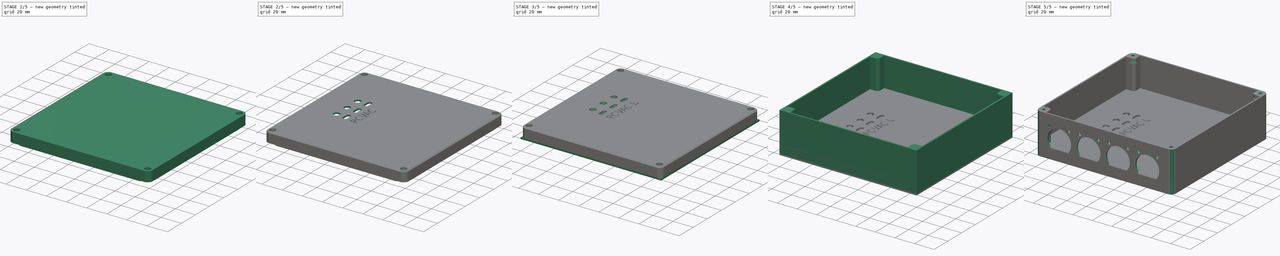
[diagram: build sequence overview — one tinted view per stage of 5, left to right]
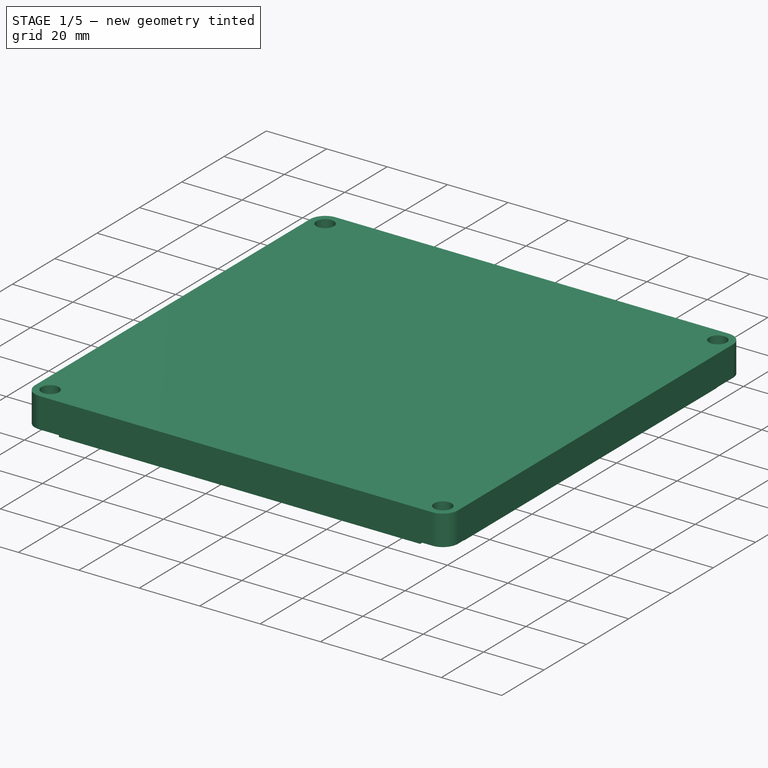
[diagram: stage 1 of 5 — iso view after this stage's code; geometry added in this stage tinted green]
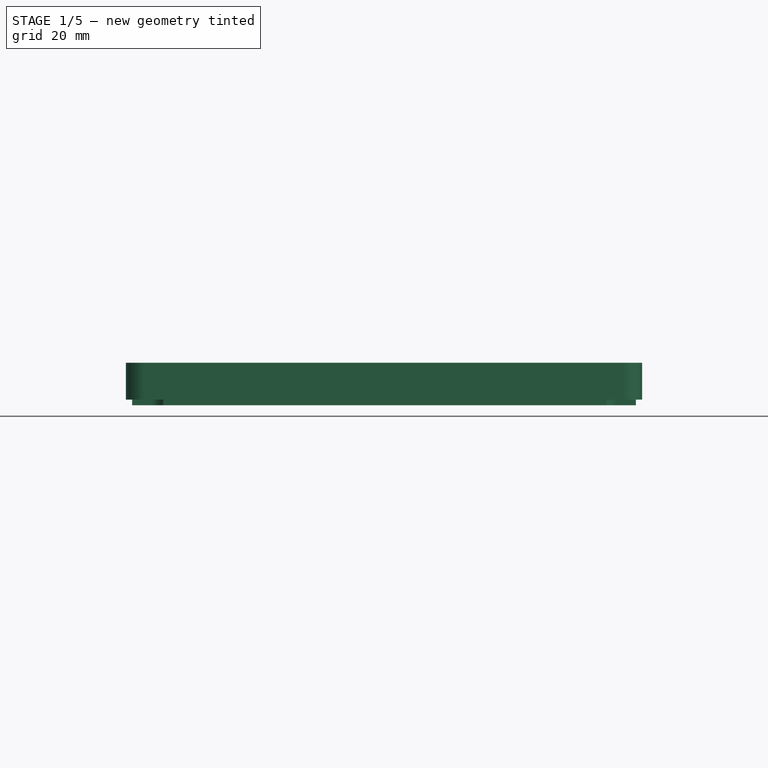
[diagram: stage 1 of 5 — front view after this stage's code; geometry added in this stage tinted green]
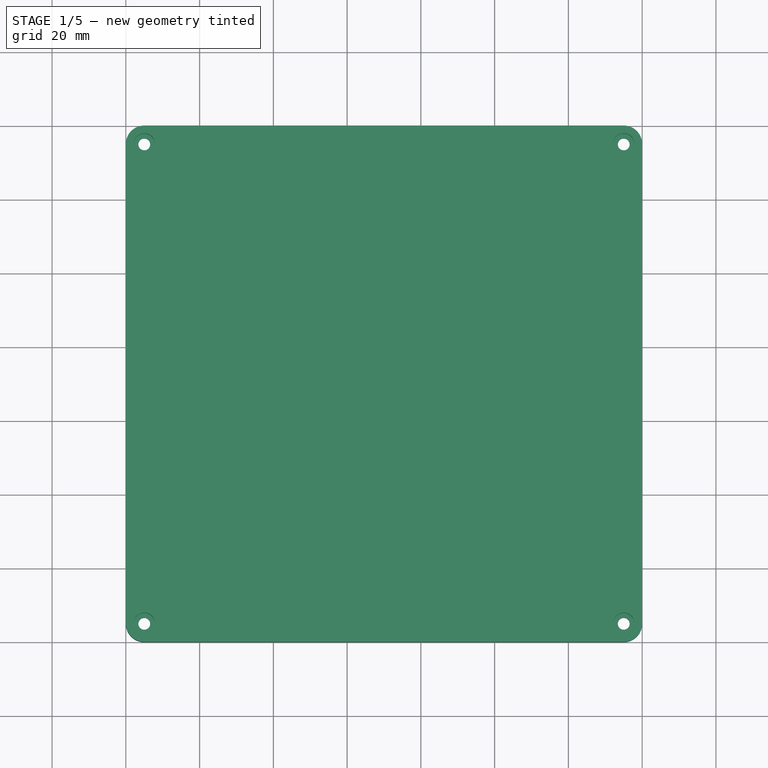
[diagram: stage 1 of 5 — top view after this stage's code; geometry added in this stage tinted green]
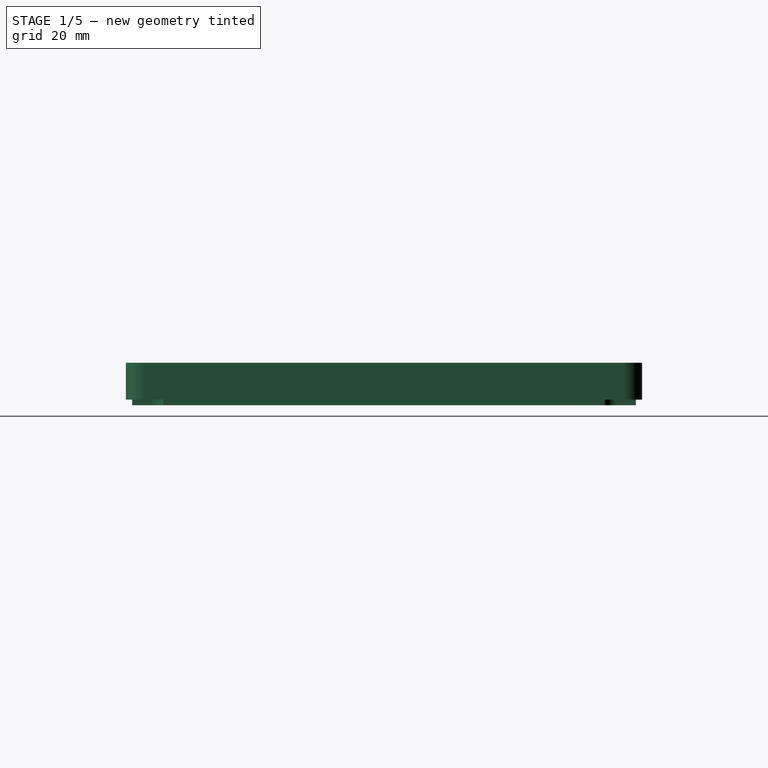
[diagram: stage 1 of 5 — right view after this stage's code; geometry added in this stage tinted green]
FCSTD DOCUMENT  (FreeCAD 1.0R39109 (Git))
Label: CNC-relays-enclosure
Comment: Panel openings are based on https://www.cliffuk.co.uk/products/feedthrough/index.htm
License: All rights reserved
LicenseURL: http://en.wikipedia.org/wiki/All_rights_reserved
objects: Sketcher::SketchObject×18, PartDesign::Pocket×13, PartDesign::Pad×8, App::Part×4, PartDesign::Plane×4, PartDesign::Body×3, Part::Part2DObjectPython×3, Part::Feature×2, PartDesign::Chamfer×2, PartDesign::Fillet×2, PartDesign::ShapeBinder×1, Spreadsheet::Sheet×1, Part::FeaturePython×1
note: 124 computed .brp shape members not serialized (recipe doc carries the construction recipe); baked Part::Feature solids carry a one-line shape summary decoded from their .brp

FEATURE [Sketcher::SketchObject] Sketch011
  ArcFitTolerance = 0
  AttachmentSupport = -> [XY_Plane003]
  FullyConstrained = true
  MakeInternals = false
  MapMode = 5
  expr: Constraints[10] = <<params>>.origin_offset_X
  expr: Constraints[11] = <<params>>.origin_offset_Y
  expr: Constraints[8] = <<params>>.box_width
  expr: Constraints[9] = <<params>>.box_length
  sketch-geometry (4):
    g0: LineSegment StartX=-20 StartY=-40 StartZ=0 EndX=120 EndY=-40 EndZ=0
    g1: LineSegment StartX=120 StartY=-40 StartZ=0 EndX=120 EndY=100 EndZ=0
    g2: LineSegment StartX=120 StartY=100 StartZ=0 EndX=-20 EndY=100 EndZ=0
    g3: LineSegment StartX=-20 StartY=100 StartZ=0 EndX=-20 EndY=-40 EndZ=0
  constraints (12):
    c: Coincident(g0,g1)
    c: Coincident(g1,g2)
    c: Coincident(g2,g3)
    c: Coincident(g3,g0)
    c: Horizontal(g0)
    c: Horizontal(g2)
    c: Vertical(g1)
    c: Vertical(g3)
    c: Distance(g0) = 140
    c: Distance(g3) = 140
    c: DistanceX(g0,g-1) = 20
    c: DistanceY(g0,g-1) = 40
FEATURE [PartDesign::Pad] Pad004
  Direction = (0,0,1)
  Length = 10
  Length2 = 10
  Profile = -> Sketch011
  ReferenceAxis = -> Sketch011 [N_Axis]
  Suppressed = false
  Type = 0
  expr: Length = <<params>>.lid_thickness
FEATURE [Sketcher::SketchObject] Sketch012
  ArcFitTolerance = 0
  AttachmentSupport = -> [XY_Plane003]
  ExternalGeometry = -> [Pad004]
  FullyConstrained = true
  MakeInternals = false
  MapMode = 5
  expr: Constraints[101] = <<params>>.box_wall + 0.2
  expr: Constraints[102] = <<params>>.box_wall + 0.2
  expr: Constraints[13] = <<params>>.corner_inner_radius
  expr: Constraints[23] = <<params>>.box_wall + 0.2
  expr: Constraints[50] = <<params>>.box_wall + 0.2
  expr: Constraints[8] = <<params>>.corner_width
  expr: Constraints[92] = <<params>>.box_wall
  expr: Constraints[93] = <<params>>.box_wall
  expr: Constraints[94] = <<params>>.box_wall
  expr: Constraints[95] = <<params>>.box_wall
  expr: Constraints[98] = <<params>>.box_wall
  sketch-geometry (38):
    g0: LineSegment [constr] StartX=-20 StartY=-40 StartZ=0 EndX=-10 EndY=-40 EndZ=0
    g1: LineSegment [constr] StartX=-10 StartY=-40 StartZ=0 EndX=-10 EndY=-33 EndZ=0
    g2: LineSegment [constr] StartX=-13 StartY=-30 StartZ=0 EndX=-20 EndY=-30 EndZ=0
    g3: LineSegment [constr] StartX=-20 StartY=-30 StartZ=0 EndX=-20 EndY=-40 EndZ=0
    g4: ArcOfCircle [constr] CenterX=-13 CenterY=-33 CenterZ=0 NormalX=0 NormalY=0 NormalZ=1 AngleXU=0 Radius=3 StartAngle=-9e-16 EndAngle=1.5708
    g5: GeomPoint [constr] X=-10 Y=-30 Z=0
    g6: LineSegment StartX=-18.3 StartY=-29.8 StartZ=0 EndX=-18.3 EndY=89.8 EndZ=0
    g7: LineSegment StartX=-18.3 StartY=-29.8 StartZ=0 EndX=-13 EndY=-29.8 EndZ=0
    g8: ArcOfCircle CenterX=-13 CenterY=-33 CenterZ=0 NormalX=0 NormalY=0 NormalZ=1 AngleXU=0 Radius=3.2 StartAngle=5e-16 EndAngle=1.5708
    g9: LineSegment StartX=-9.8 StartY=-33 StartZ=0 EndX=-9.8 EndY=-38.3 EndZ=0
    g10: LineSegment StartX=-9.8 StartY=-38.3 StartZ=0 EndX=109.8 EndY=-38.3 EndZ=0
    g11: LineSegment StartX=109.8 StartY=-38.3 StartZ=0 EndX=109.8 EndY=-33 EndZ=0
    g12: LineSegment StartX=113 StartY=-29.8 StartZ=0 EndX=118.3 EndY=-29.8 EndZ=0
    g13: ArcOfCircle CenterX=113 CenterY=-33 CenterZ=0 NormalX=0 NormalY=0 NormalZ=1 AngleXU=0 Radius=3.2 StartAngle=1.5708 EndAngle=3.14159
    g14: LineSegment StartX=118.3 StartY=-29.8 StartZ=0 EndX=118.3 EndY=89.8 EndZ=0
    g15: LineSegment StartX=-18.3 StartY=89.8 StartZ=0 EndX=-13 EndY=89.8 EndZ=0
    g16: LineSegment StartX=-9.8 StartY=93 StartZ=0 EndX=-9.8 EndY=98.3 EndZ=0
    g17: LineSegment StartX=-9.8 StartY=98.3 StartZ=0 EndX=109.8 EndY=98.3 EndZ=0
    g18: LineSegment StartX=109.8 StartY=98.3 StartZ=0 EndX=109.8 EndY=93 EndZ=0
    g19: LineSegment StartX=113 StartY=89.8 StartZ=0 EndX=118.3 EndY=89.8 EndZ=0
    g20: ArcOfCircle CenterX=113 CenterY=93 CenterZ=0 NormalX=0 NormalY=0 NormalZ=1 AngleXU=0 Radius=3.2 StartAngle=3.14159 EndAngle=4.71239
    g21: ArcOfCircle CenterX=-13 CenterY=93 CenterZ=0 NormalX=0 NormalY=0 NormalZ=1 AngleXU=0 Radius=3.2 StartAngle=4.71239 EndAngle=6.28319
    g22: LineSegment StartX=-16.8 StartY=88.3 StartZ=0 EndX=-13 EndY=88.3 EndZ=0
    g23: LineSegment StartX=-8.3 StartY=93 StartZ=0 EndX=-8.3 EndY=96.8 EndZ=0
    g24: LineSegment StartX=-16.8 StartY=88.3 StartZ=0 EndX=-16.8 EndY=-28.3 EndZ=0
    g25: LineSegment StartX=-8.3 StartY=96.8 StartZ=0 EndX=108.3 EndY=96.8 EndZ=0
    g26: LineSegment StartX=108.3 StartY=96.8 StartZ=0 EndX=108.3 EndY=93 EndZ=0
    g27: LineSegment StartX=113 StartY=88.3 StartZ=0 EndX=116.8 EndY=88.3 EndZ=0
    g28: LineSegment StartX=-16.8 StartY=-28.3 StartZ=0 EndX=-13 EndY=-28.3 EndZ=0
    g29: LineSegment StartX=-8.3 StartY=-33 StartZ=0 EndX=-8.3 EndY=-36.8 EndZ=0
    g30: LineSegment StartX=-8.3 StartY=-36.8 StartZ=0 EndX=108.3 EndY=-36.8 EndZ=0
    g31: LineSegment StartX=108.3 StartY=-36.8 StartZ=0 EndX=108.3 EndY=-33 EndZ=0
    g32: LineSegment StartX=113 StartY=-28.3 StartZ=0 EndX=116.8 EndY=-28.3 EndZ=0
    g33: LineSegment StartX=116.8 StartY=-28.3 StartZ=0 EndX=116.8 EndY=88.3 EndZ=0
    g34: ArcOfCircle CenterX=-13 CenterY=-33 CenterZ=0 NormalX=0 NormalY=0 NormalZ=1 AngleXU=0 Radius=4.7 StartAngle=3e-16 EndAngle=1.5708
    g35: ArcOfCircle CenterX=-13 CenterY=93 CenterZ=0 NormalX=0 NormalY=0 NormalZ=1 AngleXU=0 Radius=4.7 StartAngle=4.71239 EndAngle=6.28319
    g36: ArcOfCircle CenterX=113 CenterY=93 CenterZ=0 NormalX=0 NormalY=0 NormalZ=1 AngleXU=0 Radius=4.7 StartAngle=3.14159 EndAngle=4.71239
    g37: ArcOfCircle CenterX=113 CenterY=-33 CenterZ=0 NormalX=0 NormalY=0 NormalZ=1 AngleXU=0 Radius=4.7 StartAngle=1.5708 EndAngle=3.14159
  constraints (103):
    c: Coincident(g0,g1)
    c: Coincident(g2,g3)
    c: Coincident(g3,g0)
    c: Horizontal(g0)
    c: Horizontal(g2)
    c: Vertical(g1)
    c: Vertical(g3)
    c: Coincident(g0,g-4)
    c: Distance(g1,g5) = 10
    c: PointOnObject(g5,g2)
    c: PointOnObject(g5,g1)
    c: Tangent(g2,g4) = -1.5708
    c: Tangent(g1,g4) = -1.5708
    c: Radius(g4) = 3
    c: Equal(g0,g3)
    c: Vertical(g6)
    c: Coincident(g7,g6)
    c: Horizontal(g7)
    c: Tangent(g8,g7) = 1.5708
    c: Vertical(g9)
    c: Tangent(g9,g8) = 1.5708
    c: Coincident(g10,g9)
    c: Horizontal(g10)
    c: Distance(g9,g0) = 1.7
    c: Vertical(g7,g2)
    c: Coincident(g11,g10)
    c: Vertical(g11)
    c: Horizontal(g12)
    c: Tangent(g11,g13) = 1.5708
    c: Tangent(g12,g13) = 1.5708
    c: Equal(g8,g13)
    c: Coincident(g14,g12)
    c: Vertical(g14)
    c: Coincident(g15,g6)
    c: Horizontal(g15)
    c: Vertical(g16)
    c: Coincident(g17,g16)
    c: Horizontal(g17)
    c: Coincident(g18,g17)
    c: Vertical(g18)
    c: Horizontal(g19)
    c: Coincident(g19,g14)
    c: Tangent(g19,g20) = -1.5708
    c: Tangent(g18,g20) = -1.5708
    c: Tangent(g15,g21) = -1.5708
    c: Tangent(g16,g21) = -1.5708
    c: DistanceY(g2,g6) = 0.2
    c: DistanceX(g0,g9) = 0.2
    c: Equal(g8,g21)
    c: Equal(g21,g20)
    c: DistanceY(g17,g-6) = 1.7
    c: Vertical(g11,g18)
    c: Horizontal(g14,g6)
    c: Equal(g15,g16)
    c: Equal(g11,g12)
    c: Equal(g9,g11)
    c: Equal(g16,g9)
    c: Horizontal(g22)
    c: Vertical(g23)
    c: Coincident(g24,g22)
    c: Vertical(g24)
    c: Coincident(g25,g23)
    c: Horizontal(g25)
    c: Coincident(g26,g25)
    c: Vertical(g26)
    c: Horizontal(g27)
    c: Coincident(g28,g24)
    c: Horizontal(g28)
    c: Vertical(g29)
    c: Coincident(g30,g29)
    c: Horizontal(g30)
    c: Coincident(g31,g30)
    c: Vertical(g31)
    c: Horizontal(g32)
    c: Coincident(g33,g32)
    c: Coincident(g33,g27)
    c: Vertical(g33)
    c: Tangent(g28,g34) = 1.5708
    c: Tangent(g29,g34) = 1.5708
    c: Tangent(g22,g35) = -1.5708
    c: Tangent(g23,g35) = -1.5708
    c: Tangent(g26,g36) = -1.5708
    c: Tangent(g27,g36) = -1.5708
    c: Tangent(g31,g37) = 1.5708
    c: Tangent(g32,g37) = 1.5708
    c: Equal(g34,g37)
    c: Equal(g37,g36)
    c: Equal(g36,g35)
    c: Vertical(g22,g28)
    c: Vertical(g32,g27)
    c: Horizontal(g22,g27)
    c: Horizontal(g24,g32)
    c: Distance(g22,g6) = 1.5
    c: Distance(g23,g17) = 1.5
    c: Distance(g27,g14) = 1.5
    c: Distance(g29,g10) = 1.5
    c: Horizontal(g16,g23)
    c: Vertical(g22,g15)
    c: Distance(g23,g16) = 1.5
    c: Equal(g29,g23)
    c: Equal(g22,g27)
    c: DistanceX(g12,g-5) = 1.7
    c: DistanceX(g0,g6) = 1.7
FEATURE [PartDesign::Pad] Pad005
  BaseFeature = -> Pad004
  Direction = (0,0,1)
  Length = 1.5
  Length2 = 10
  Profile = -> Sketch012
  ReferenceAxis = -> Sketch012 [N_Axis]
  Reversed = true
  Suppressed = false
  Type = 0
  expr: Length = <<params>>.box_wall
FEATURE [Sketcher::SketchObject] Sketch013
  ArcFitTolerance = 0
  AttachmentSupport = -> [XY_Plane003]
  ExternalGeometry = -> [Pad005]
  FullyConstrained = true
  MakeInternals = false
  MapMode = 5
  expr: Constraints[10] = <<params>>.hole_offset
  expr: Constraints[11] = <<params>>.hole_offset
  expr: Constraints[8] = <<params>>.hole_offset
  expr: Constraints[9] = <<params>>.hole_offset
  sketch-geometry (4):
    g0: Circle CenterX=-15 CenterY=95 CenterZ=0 NormalX=0 NormalY=0 NormalZ=1 AngleXU=0 Radius=1.6
    g1: Circle CenterX=115 CenterY=95 CenterZ=0 NormalX=0 NormalY=0 NormalZ=1 AngleXU=0 Radius=1.6
    g2: Circle CenterX=-15 CenterY=-35 CenterZ=0 NormalX=0 NormalY=0 NormalZ=1 AngleXU=0 Radius=1.6
    g3: Circle CenterX=115 CenterY=-35 CenterZ=0 NormalX=0 NormalY=0 NormalZ=1 AngleXU=0 Radius=1.6
  constraints (12):
    c: Vertical(g0,g2)
    c: Vertical(g3,g1)
    c: Horizontal(g0,g1)
    c: Horizontal(g3,g2)
    c: Equal(g2,g3)
    c: Equal(g3,g1)
    c: Equal(g1,g0)
    c: Diameter(g0) = 3.2
    c: DistanceX(g-4,g0) = 5
    c: DistanceY(g0,g-4) = 5
    c: DistanceX(g3,g-6) = 5
    c: DistanceY(g-6,g3) = 5
FEATURE [PartDesign::Pocket] Pocket006
  BaseFeature = -> Pad005
  Direction = (0,0,-1)
  Length = 5
  Length2 = 5
  Profile = -> Sketch013
  ReferenceAxis = -> Sketch013 [N_Axis]
  Reversed = true
  Suppressed = false
  Type = 1
FEATURE [PartDesign::Body] Body  label="bottom"
  AllowCompound = false
  Group = -> [Sketch,Pad,ShapeBinder,Sketch001,Pad001,Sketch002,Sketch003,Pad002,Pocket,DatumPlane,Sketch004,Pocket001,Sketch005,Pocket002,Sketch006,Pad003,Sketch008,Pocket003,DatumPlane001,Sketch009,Pocket004,DatumPlane002,Sketch010,Pocket005,Chamfer,Fillet]
  Origin = -> Origin002
  Tip = -> Fillet
FEATURE [PartDesign::Fillet] Fillet001  label="Fillet001-outer-corner"
  Base = -> Pocket006 [Edge1,Edge2,Edge8,Edge5]
  BaseFeature = -> Pocket006
  Radius = 5
  SupportTransform = false
  Suppressed = false
  UseAllEdges = false
  expr: Radius = <<params>>.box_outer_corner
FEATURE [PartDesign::Plane] DatumPlane003  label="DatumPlane003-lid-top"
  AttachmentOffset = pos=(0,0,10) rot=(0,0,1;0rad)
  AttachmentSupport = -> [XY_Plane003]
  Length = 173.496
  MapMode = 5
  Placement = pos=(0,0,10) rot=(0,0,1;0rad)
  ResizeMode = 0
  Width = 168.496
  expr: .AttachmentOffset.Base.z = <<params>>.lid_thickness
FEATURE [Sketcher::SketchObject] Sketch014
  ArcFitTolerance = 0
  AttachmentSupport = -> [DatumPlane003]
  FullyConstrained = true
  MakeInternals = false
  MapMode = 5
  Placement = pos=(0,0,10) rot=(0,0,1;0rad)
  expr: Constraints[11] = <<params>>.box_length - 2 * <<params>>.hole_offset
  expr: Constraints[4] = <<params>>.origin_offset_X - <<params>>.hole_offset
  expr: Constraints[5] = <<params>>.origin_offset_Y - <<params>>.hole_offset
  expr: Constraints[7] = <<params>>.box_width - 2 * <<params>>.hole_offset
  sketch-geometry (4):
    g0: Circle CenterX=-15 CenterY=95 CenterZ=0 NormalX=0 NormalY=0 NormalZ=1 AngleXU=0 Radius=2.9
    g1: Circle CenterX=115 CenterY=95 CenterZ=0 NormalX=0 NormalY=0 NormalZ=1 AngleXU=0 Radius=2.9
    g2: Circle CenterX=115 CenterY=-35 CenterZ=0 NormalX=0 NormalY=0 NormalZ=1 AngleXU=0 Radius=2.9
    g3: Circle CenterX=-15 CenterY=-35 CenterZ=0 NormalX=0 NormalY=0 NormalZ=1 AngleXU=0 Radius=2.9
  constraints (12):
    c: Equal(g1,g2)
    c: Equal(g2,g3)
    c: Equal(g3,g0)
    c: Diameter(g0) = 5.8
    c: DistanceX(g3,g-1) = 15
    c: DistanceY(g3,g-1) = 35
    c: Horizontal(g3,g2)
    c: DistanceX(g3,g2) = 130
    c: Vertical(g3,g0)
    c: Vertical(g2,g1)
    c: Horizontal(g0,g1)
    c: DistanceY(g3,g0) = 130
FEATURE [PartDesign::Pocket] Pocket007  label="Pocket007-screw-head"
  BaseFeature = -> Fillet001
  Direction = (0,0,-1)
  Length = 7
  Length2 = 5
  Profile = -> Sketch014
  ReferenceAxis = -> Sketch014 [N_Axis]
  Suppressed = false
  Type = 0
  expr: Length = <<params>>.lid_thickness - 2 * <<params>>.box_wall
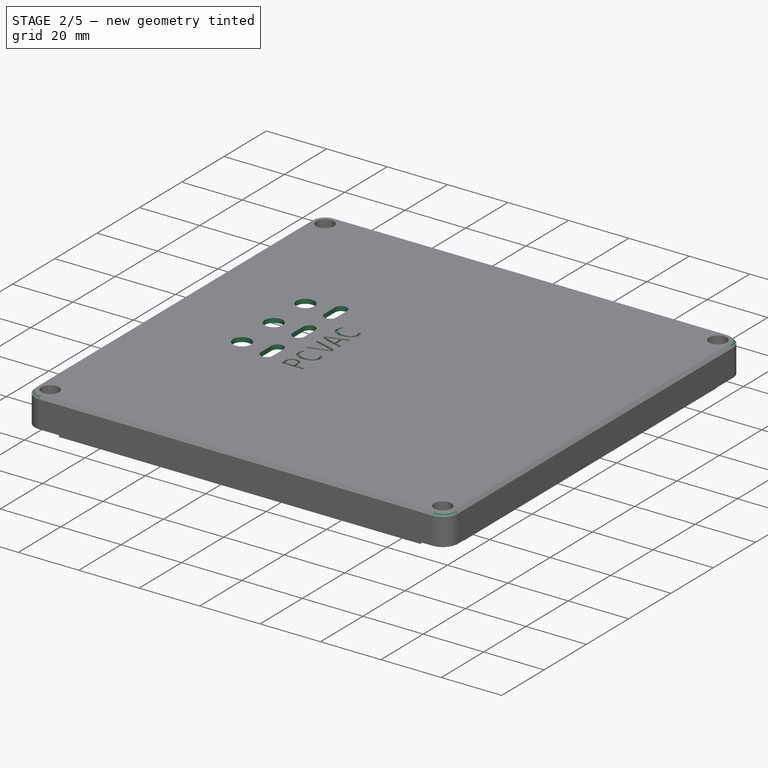
[diagram: stage 2 of 5 — iso view after this stage's code; geometry added in this stage tinted green]
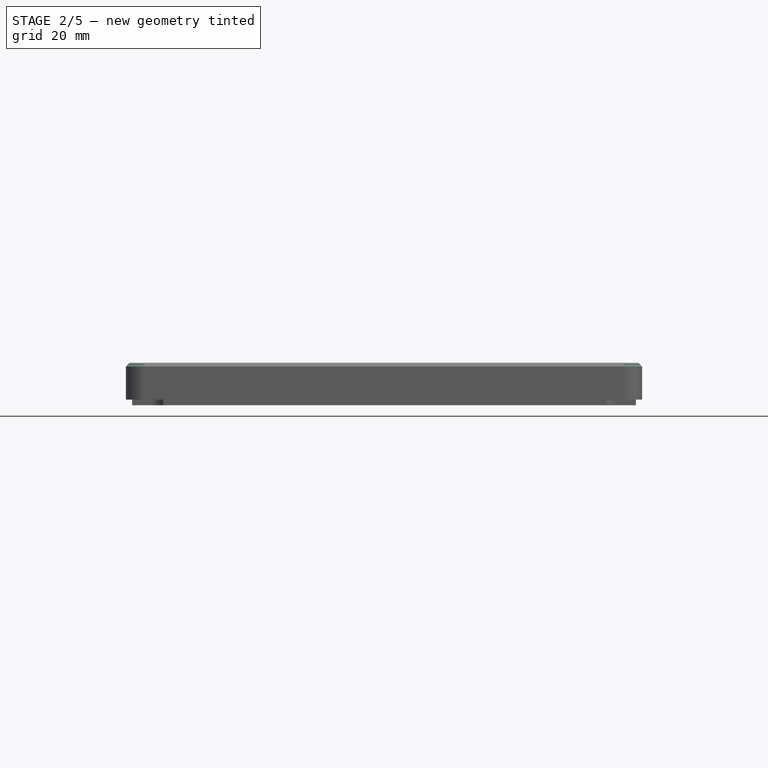
[diagram: stage 2 of 5 — front view after this stage's code; geometry added in this stage tinted green]
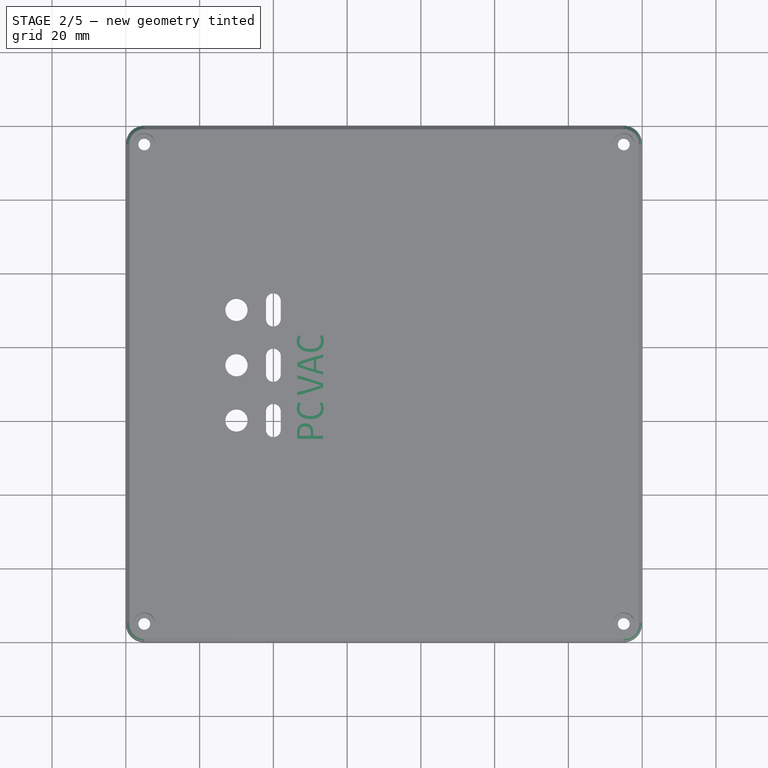
[diagram: stage 2 of 5 — top view after this stage's code; geometry added in this stage tinted green]
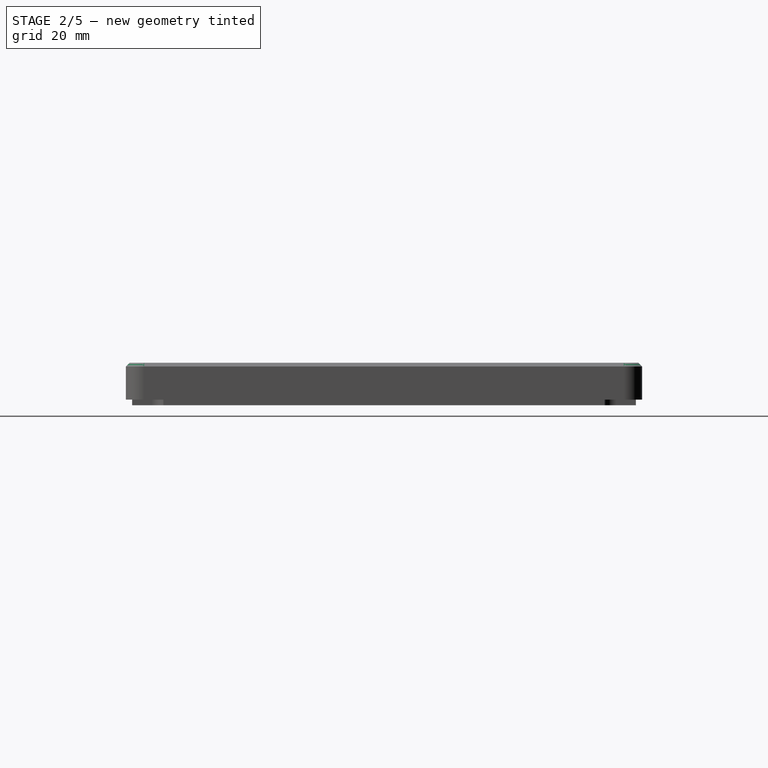
[diagram: stage 2 of 5 — right view after this stage's code; geometry added in this stage tinted green]
FEATURE [Sketcher::SketchObject] Sketch015
  ArcFitTolerance = 0
  AttachmentSupport = -> [XY_Plane003]
  FullyConstrained = true
  MakeInternals = false
  MapMode = 5
  expr: Constraints[4] = <<params>>.origin_offset_X - <<params>>.corner_width
  expr: Constraints[5] = <<params>>.origin_offset_Y - <<params>>.corner_width
  expr: Constraints[6] = <<params>>.box_width - 2 * <<params>>.corner_width
  expr: Constraints[7] = <<params>>.box_length - 2 * <<params>>.corner_width
  sketch-geometry (12):
    g0: LineSegment StartX=-4 StartY=-30 StartZ=0 EndX=104 EndY=-30 EndZ=0
    g1: LineSegment StartX=110 StartY=-24 StartZ=0 EndX=110 EndY=84 EndZ=0
    g2: LineSegment StartX=104 StartY=90 StartZ=0 EndX=-4 EndY=90 EndZ=0
    g3: LineSegment StartX=-10 StartY=84 StartZ=0 EndX=-10 EndY=-24 EndZ=0
    g4: ArcOfCircle CenterX=-4 CenterY=84 CenterZ=0 NormalX=0 NormalY=0 NormalZ=1 AngleXU=0 Radius=6 StartAngle=1.5708 EndAngle=3.14159
    g5: GeomPoint [constr] X=-10 Y=90 Z=0
    g6: ArcOfCircle CenterX=104 CenterY=84 CenterZ=0 NormalX=0 NormalY=0 NormalZ=1 AngleXU=0 Radius=6 StartAngle=-9e-16 EndAngle=1.5708
    g7: GeomPoint [constr] X=110 Y=90 Z=0
    g8: ArcOfCircle CenterX=-4 CenterY=-24 CenterZ=0 NormalX=0 NormalY=0 NormalZ=1 AngleXU=0 Radius=6 StartAngle=3.14159 EndAngle=4.71239
    g9: GeomPoint [constr] X=-10 Y=-30 Z=0
    g10: ArcOfCircle CenterX=104 CenterY=-24 CenterZ=0 NormalX=0 NormalY=0 NormalZ=1 AngleXU=0 Radius=6 StartAngle=4.71239 EndAngle=6.28319
    g11: GeomPoint [constr] X=110 Y=-30 Z=0
  constraints (28):
    c: Horizontal(g0)
    c: Horizontal(g2)
    c: Vertical(g1)
    c: Vertical(g3)
    c: DistanceX(g9,g-1) = 10
    c: DistanceY(g9,g-1) = 30
    c: DistanceX(g9,g11) = 120
    c: DistanceY(g9,g5) = 120
    c: PointOnObject(g5,g3)
    c: PointOnObject(g5,g2)
    c: Tangent(g3,g4) = -1.5708
    c: Tangent(g2,g4) = -1.5708
    c: PointOnObject(g7,g2)
    c: PointOnObject(g7,g1)
    c: Tangent(g2,g6) = -1.5708
    c: Tangent(g1,g6) = -1.5708
    c: PointOnObject(g9,g3)
    c: PointOnObject(g9,g0)
    c: Tangent(g3,g8) = -1.5708
    c: Tangent(g0,g8) = -1.5708
    c: PointOnObject(g11,g1)
    c: PointOnObject(g11,g0)
    c: Tangent(g1,g10) = -1.5708
    c: Tangent(g0,g10) = -1.5708
    c: Equal(g8,g10)
    c: Equal(g10,g6)
    c: Equal(g6,g4)
    c: Radius(g4) = 6
FEATURE [PartDesign::Pocket] Pocket008
  BaseFeature = -> Pocket007
  Direction = (0,0,-1)
  Length = 8.5
  Length2 = 5
  Profile = -> Sketch015
  ReferenceAxis = -> Sketch015 [N_Axis]
  Reversed = true
  Suppressed = false
  Type = 0
  expr: Length = <<params>>.lid_thickness - <<params>>.box_wall
FEATURE [PartDesign::Chamfer] Chamfer001  label="Chamfer001-topedge"
  Angle = 45
  Base = -> Pocket008 [Edge4]
  BaseFeature = -> Pocket008
  ChamferType = 0
  FlipDirection = false
  Size = 1
  Size2 = 1
  SupportTransform = false
  Suppressed = false
  UseAllEdges = false
FEATURE [Part::Feature] Part__Feature001  label="CNC-relays-control-panel PCB"
  shape: bbox 49.53 x 41.91 x 1.6 mm, 343 faces (baked)
FEATURE [App::Part] CNC_relays_control_panel_1  label="CNC-relays-control-panel 1"
  Group = -> [Part__Feature001]
  Origin = -> Origin004
  Placement = pos=(41.5,12.5,37.5) rot=(0,0,1;1.5708rad)
  expr: .Placement.Base.z = <<params>>.box_height
FEATURE [Sketcher::SketchObject] Sketch016
  ArcFitTolerance = 0
  AttachmentSupport = -> [DatumPlane003]
  FullyConstrained = true
  MakeInternals = false
  MapMode = 5
  Placement = pos=(0,0,10) rot=(0,0,1;0rad)
  expr: Constraints[47] = <<params>>.panel_off_y
  expr: Constraints[48] = <<params>>.panel_off_x
  sketch-geometry (22):
    g0: GeomPoint [constr] X=20 Y=20 Z=0
    g1: GeomPoint [constr] X=10 Y=20 Z=0
    g2: Circle CenterX=10 CenterY=20 CenterZ=0 NormalX=0 NormalY=0 NormalZ=1 AngleXU=0 Radius=3
    g3: LineSegment [constr] StartX=17 StartY=20 StartZ=0 EndX=17 EndY=50 EndZ=0
    g4: ArcOfCircle CenterX=20 CenterY=17.5 CenterZ=0 NormalX=0 NormalY=0 NormalZ=1 AngleXU=0 Radius=2 StartAngle=3.14159 EndAngle=6.28319
    g5: ArcOfCircle CenterX=20 CenterY=22.5 CenterZ=0 NormalX=0 NormalY=0 NormalZ=1 AngleXU=0 Radius=2 StartAngle=-5.3e-15 EndAngle=3.14159
    g6: LineSegment StartX=22 StartY=17.5 StartZ=0 EndX=22 EndY=22.5 EndZ=0
    g7: LineSegment StartX=18 StartY=22.5 StartZ=0 EndX=18 EndY=17.5 EndZ=0
    g8: GeomPoint [constr] X=20 Y=35 Z=0
    g9: GeomPoint [constr] X=10 Y=35 Z=0
    g10: Circle CenterX=10 CenterY=35 CenterZ=0 NormalX=0 NormalY=0 NormalZ=1 AngleXU=0 Radius=3
    g11: ArcOfCircle CenterX=20 CenterY=32.5 CenterZ=0 NormalX=0 NormalY=0 NormalZ=1 AngleXU=0 Radius=2 StartAngle=3.14159 EndAngle=6.28319
    g12: ArcOfCircle CenterX=20 CenterY=37.5 CenterZ=0 NormalX=0 NormalY=0 NormalZ=1 AngleXU=0 Radius=2 StartAngle=1.3e-15 EndAngle=3.14159
    g13: LineSegment StartX=22 StartY=32.5 StartZ=0 EndX=22 EndY=37.5 EndZ=0
    g14: LineSegment StartX=18 StartY=37.5 StartZ=0 EndX=18 EndY=32.5 EndZ=0
    g15: GeomPoint [constr] X=20 Y=50 Z=0
    g16: GeomPoint [constr] X=10 Y=50 Z=0
    g17: Circle CenterX=10 CenterY=50 CenterZ=0 NormalX=0 NormalY=0 NormalZ=1 AngleXU=0 Radius=3
    g18: ArcOfCircle CenterX=20 CenterY=47.5 CenterZ=0 NormalX=0 NormalY=0 NormalZ=1 AngleXU=0 Radius=2 StartAngle=3.14159 EndAngle=6.28319
    g19: ArcOfCircle CenterX=20 CenterY=52.5 CenterZ=0 NormalX=0 NormalY=0 NormalZ=1 AngleXU=0 Radius=2 StartAngle=3.8e-15 EndAngle=3.14159
    g20: LineSegment StartX=22 StartY=47.5 StartZ=0 EndX=22 EndY=52.5 EndZ=0
    g21: LineSegment StartX=18 StartY=52.5 StartZ=0 EndX=18 EndY=47.5 EndZ=0
  constraints (49):
    c: Horizontal(g1,g0)
    c: DistanceX(g1,g0) = 10
    c: Coincident(g2,g1)
    c: Diameter(g2) = 6
    c: Vertical(g3)
    c: Distance(g2,g3) = 7
    c: Tangent(g4,g6) = -1.5708
    c: Tangent(g6,g5) = -1.5708
    c: Tangent(g5,g7) = -1.5708
    c: Tangent(g7,g4) = -1.5708
    c: Equal(g4,g5)
    c: Vertical(g6)
    c: Radius(g5) = 2
    c: Symmetric(g4,g5,g0)
    c: Distance(g6) = 5
    c: Horizontal(g9,g8)
    c: DistanceX(g9,g8) = 10
    c: Coincident(g10,g9)
    c: Equal(g2,g10) = 6
    c: Tangent(g11,g13) = -1.5708
    c: Tangent(g13,g12) = -1.5708
    c: Tangent(g12,g14) = -1.5708
    c: Tangent(g14,g11) = -1.5708
    c: Equal(g11,g12)
    c: Vertical(g13)
    c: Equal(g5,g12) = 2
    c: Symmetric(g11,g12,g8)
    c: Equal(g6,g13) = 4
    c: Vertical(g10,g2)
    c: DistanceY(g2,g10) = 15
    c: Horizontal(g16,g15)
    c: DistanceX(g16,g15) = 10
    c: Coincident(g17,g16)
    c: Equal(g2,g17) = 6
    c: Tangent(g18,g20) = -1.5708
    c: Tangent(g20,g19) = -1.5708
    c: Tangent(g19,g21) = -1.5708
    c: Tangent(g21,g18) = -1.5708
    c: Equal(g18,g19)
    c: Vertical(g20)
    c: Equal(g5,g19) = 2
    c: Symmetric(g18,g19,g15)
    c: Equal(g6,g20) = 4
    c: Vertical(g2,g17)
    c: DistanceY(g10,g17) = 15
    c: Horizontal(g3,g2)
    c: Horizontal(g17,g3)
    c: DistanceY(g-1,g2) = 20
    c: DistanceX(g-1,g2) = 10
FEATURE [PartDesign::Pocket] Pocket009
  BaseFeature = -> Chamfer001
  Direction = (0,0,-1)
  Length = 5
  Length2 = 5
  Profile = -> Sketch016
  ReferenceAxis = -> Sketch016 [N_Axis]
  Suppressed = false
  Type = 1
FEATURE [App::Part] Part001  label="Lightpipe"
  Group = -> [Body002,Array]
  Origin = -> Origin005
  Placement = pos=(20,20,48.5) rot=(0,0,1;1.5708rad)
FEATURE [Part::Part2DObjectPython] ShapeString  label="ShapeString-PC"  # Draft 2D object (typed FeaturePython)
  AttachmentOffset = pos=(30,20,10) rot=(0,0,1;1.5708rad)
  AttachmentSupport = -> [XY_Plane003]
  FontFile = /run/user/1000/doc/1b9c6f39/UbuntuMono[wght].ttf
  Fuse = false
  Justification = 4
  JustificationReference = 0
  KeepLeftMargin = false
  MakeFace = true
  MapMode = 5
  ObliqueAngle = 0
  Placement = pos=(30,20,10) rot=(0,0,1;1.5708rad)
  ScaleToSize = true
  Size = 7
  String = PC
  Tracking = 0
  expr: .AttachmentOffset.Base.x = <<params>>.panel_off_x + 20
  expr: .AttachmentOffset.Base.y = <<params>>.panel_off_y
  expr: .AttachmentOffset.Base.z = <<params>>.lid_thickness
  expr: .Placement.Base.z = <<params>>.lid_thickness
  expr: Size = <<params>>.text_size
FEATURE [PartDesign::Pocket] Pocket010
  BaseFeature = -> Pocket009
  Direction = (0,0,-1)
  Length = 0.7
  Length2 = 5
  Profile = -> ShapeString
  ReferenceAxis = -> ShapeString [N_Axis]
  Suppressed = false
  Type = 0
  expr: Length = <<params>>.text_depth
FEATURE [Part::Part2DObjectPython] ShapeString001  label="ShapeString-VAC"  # Draft 2D object (typed FeaturePython)
  AttachmentOffset = pos=(30,35,10) rot=(0,0,1;1.5708rad)
  AttachmentSupport = -> [XY_Plane003]
  FontFile = /run/user/1000/doc/1b9c6f39/UbuntuMono[wght].ttf
  Fuse = false
  Justification = 4
  JustificationReference = 0
  KeepLeftMargin = false
  MakeFace = true
  MapMode = 5
  ObliqueAngle = 0
  Placement = pos=(30,35,10) rot=(0,0,1;1.5708rad)
  ScaleToSize = true
  Size = 7
  String = VAC
  Tracking = 0
  expr: .AttachmentOffset.Base.y = <<params>>.panel_off_y + 15
  expr: .AttachmentOffset.Base.z = <<params>>.lid_thickness
  expr: .Placement.Base.z = <<params>>.lid_thickness
  expr: Size = <<params>>.text_size
FEATURE [PartDesign::Pocket] Pocket011
  BaseFeature = -> Pocket010
  Direction = (0,0,-1)
  Length = 0.7
  Length2 = 5
  Profile = -> ShapeString001
  ReferenceAxis = -> ShapeString001 [N_Axis]
  Suppressed = false
  Type = 0
  expr: Length = <<params>>.text_depth
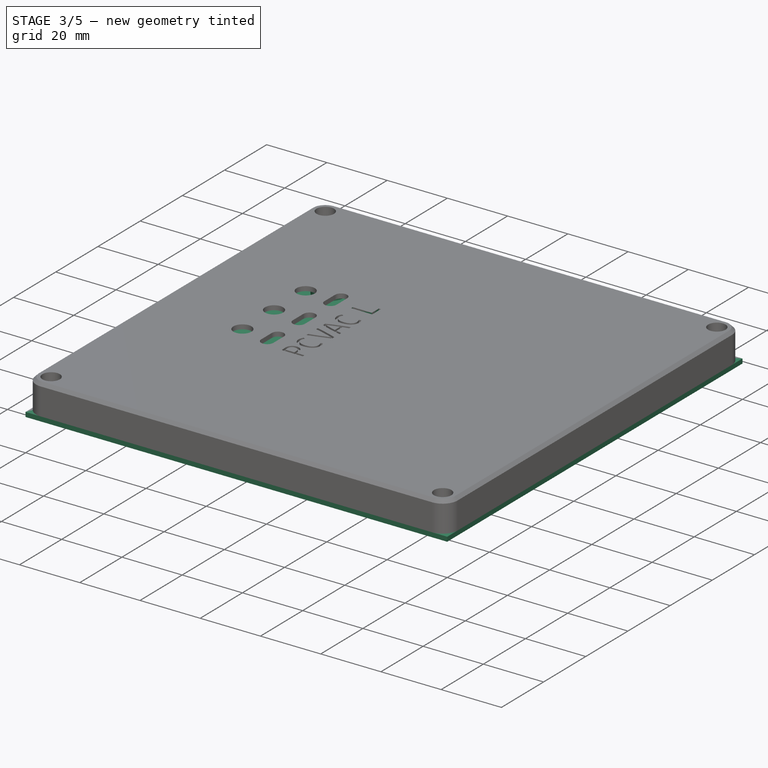
[diagram: stage 3 of 5 — iso view after this stage's code; geometry added in this stage tinted green]
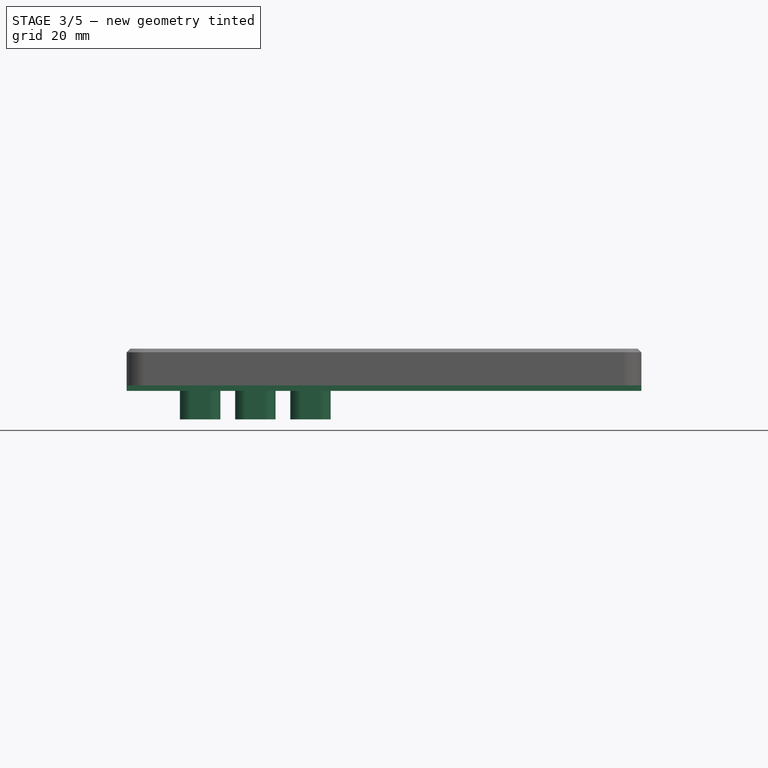
[diagram: stage 3 of 5 — front view after this stage's code; geometry added in this stage tinted green]
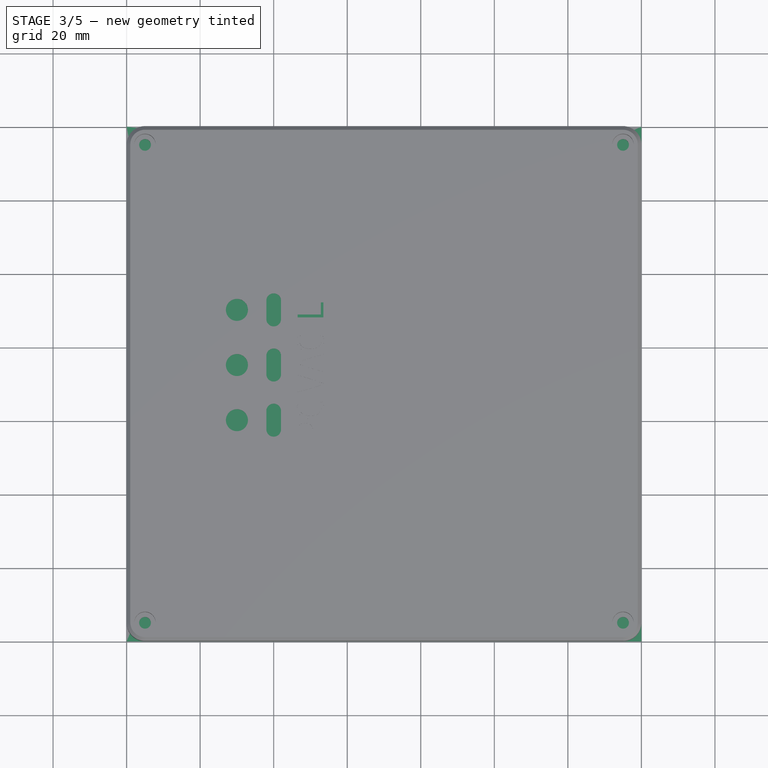
[diagram: stage 3 of 5 — top view after this stage's code; geometry added in this stage tinted green]
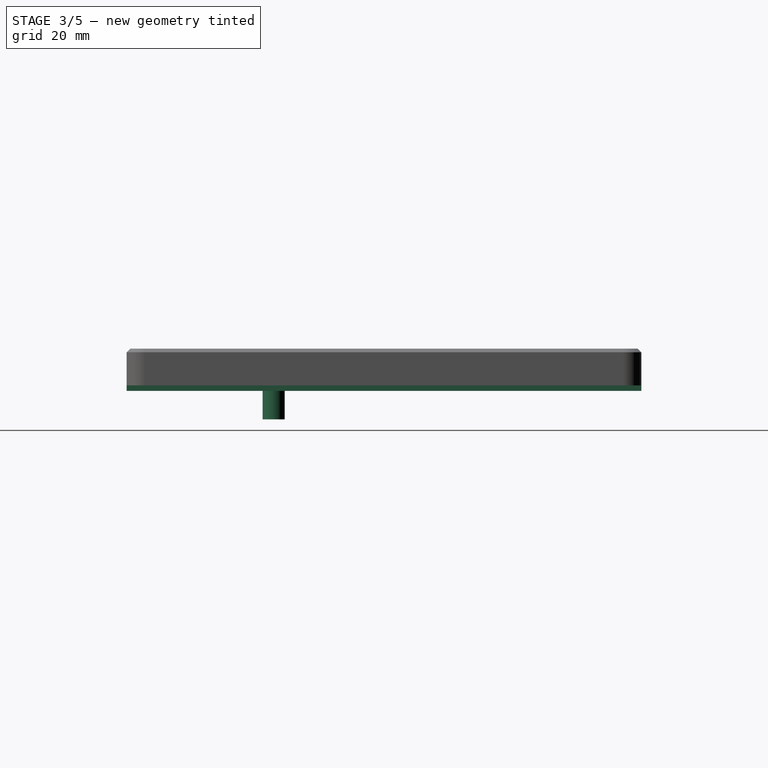
[diagram: stage 3 of 5 — right view after this stage's code; geometry added in this stage tinted green]
FEATURE [Part::Feature] Part__Feature  label="CNC-relays PCB"
  shape: bbox 93.98 x 87.63 x 1.6 mm, 257 faces (baked)
FEATURE [App::Part] CNC_relays_1  label="CNC-relays 1"
  Group = -> [Part__Feature]
  Origin = -> Origin
  Placement = pos=(0,0,10) rot=(0,0,1;0rad)
FEATURE [Sketcher::SketchObject] Sketch
  ArcFitTolerance = 0
  AttachmentSupport = -> [XY_Plane002]
  FullyConstrained = true
  MakeInternals = false
  MapMode = 5
  expr: Constraints[19] = <<params>>.origin_offset_X
  expr: Constraints[20] = <<params>>.origin_offset_Y
  expr: Constraints[21] = <<params>>.box_width
  expr: Constraints[22] = <<params>>.box_length
  sketch-geometry (8):
    g0: LineSegment [constr] StartX=0 StartY=0 StartZ=0 EndX=93.98 EndY=0 EndZ=0
    g1: LineSegment [constr] StartX=93.98 StartY=0 StartZ=0 EndX=93.98 EndY=87.63 EndZ=0
    g2: LineSegment [constr] StartX=93.98 StartY=87.63 StartZ=0 EndX=0 EndY=87.63 EndZ=0
    g3: LineSegment [constr] StartX=0 StartY=87.63 StartZ=0 EndX=0 EndY=0 EndZ=0
    g4: LineSegment StartX=-20 StartY=-40 StartZ=0 EndX=120 EndY=-40 EndZ=0
    g5: LineSegment StartX=120 StartY=-40 StartZ=0 EndX=120 EndY=100 EndZ=0
    g6: LineSegment StartX=120 StartY=100 StartZ=0 EndX=-20 EndY=100 EndZ=0
    g7: LineSegment StartX=-20 StartY=100 StartZ=0 EndX=-20 EndY=-40 EndZ=0
  constraints (23):
    c: Coincident(g0,g1)
    c: Coincident(g1,g2)
    c: Coincident(g2,g3)
    c: Coincident(g3,g0)
    c: Horizontal(g0)
    c: Horizontal(g2)
    c: Vertical(g1)
    c: Vertical(g3)
    c: Coincident(g0,g-1)
    c: DistanceX(g2,g2) = 93.98
    c: DistanceY(g3,g3) = 87.63
    c: Coincident(g4,g5)
    c: Coincident(g5,g6)
    c: Coincident(g6,g7)
    c: Coincident(g7,g4)
    c: Horizontal(g4)
    c: Horizontal(g6)
    c: Vertical(g5)
    c: Vertical(g7)
    c: DistanceX(g6,g-1) = 20
    c: DistanceY(g4,g-1) = 40
    c: Distance(g4) = 140
    c: Distance(g5) = 140
FEATURE [PartDesign::Pad] Pad
  Direction = (0,0,1)
  Length = 1.5
  Length2 = 10
  Profile = -> Sketch
  ReferenceAxis = -> Sketch [N_Axis]
  Reversed = true
  Suppressed = false
  Type = 0
  expr: Length = <<params>>.box_wall
FEATURE [PartDesign::ShapeBinder] ShapeBinder
  Support = -> [Part__Feature]
  TraceSupport = false
FEATURE [Sketcher::SketchObject] Sketch001
  ArcFitTolerance = 0
  AttachmentSupport = -> [XY_Plane002]
  ExternalGeometry = -> [ShapeBinder]
  FullyConstrained = true
  MakeInternals = false
  MapMode = 5
  sketch-geometry (6):
    g0: Circle CenterX=3.81 CenterY=3.81 CenterZ=0 NormalX=0 NormalY=0 NormalZ=1 AngleXU=0 Radius=5
    g1: Circle CenterX=3.81 CenterY=69.85 CenterZ=0 NormalX=0 NormalY=0 NormalZ=1 AngleXU=0 Radius=5
    g2: Circle CenterX=53.34 CenterY=69.85 CenterZ=0 NormalX=0 NormalY=0 NormalZ=1 AngleXU=0 Radius=5
    g3: Circle CenterX=80.01 CenterY=83.82 CenterZ=0 NormalX=0 NormalY=0 NormalZ=1 AngleXU=0 Radius=5
    g4: Circle CenterX=80.01 CenterY=28.575 CenterZ=0 NormalX=0 NormalY=0 NormalZ=1 AngleXU=0 Radius=5
    g5: Circle CenterX=53.34 CenterY=3.81 CenterZ=0 NormalX=0 NormalY=0 NormalZ=1 AngleXU=0 Radius=5
  constraints (12):
    c: Equal(g0,g5)
    c: Equal(g5,g4)
    c: Equal(g4,g3)
    c: Equal(g3,g2)
    c: Equal(g2,g1)
    c: Diameter(g1) = 10
    c: Coincident(g1,g-3)
    c: Coincident(g2,g-4)
    c: Coincident(g3,g-5)
    c: Coincident(g4,g-6)
    c: Coincident(g5,g-7)
    c: Coincident(g0,g-8)
FEATURE [PartDesign::Pad] Pad001
  BaseFeature = -> Pad
  Direction = (0,0,1)
  Length = 5
  Length2 = 10
  Profile = -> Sketch001
  ReferenceAxis = -> Sketch001 [N_Axis]
  Suppressed = false
  Type = 0
FEATURE [Sketcher::SketchObject] Sketch017
  ArcFitTolerance = 1e-06
  AttachmentSupport = -> [XY_Plane006]
  FullyConstrained = true
  MakeInternals = false
  MapMode = 5
  sketch-geometry (8):
    g0: ArcOfCircle [constr] CenterX=-2.5 CenterY=0 CenterZ=0 NormalX=0 NormalY=0 NormalZ=1 AngleXU=0 Radius=2 StartAngle=1.5708 EndAngle=4.71239
    g1: ArcOfCircle [constr] CenterX=2.5 CenterY=0 CenterZ=0 NormalX=0 NormalY=0 NormalZ=1 AngleXU=0 Radius=2 StartAngle=4.71239 EndAngle=7.85398
    g2: LineSegment [constr] StartX=-2.5 StartY=2 StartZ=0 EndX=2.5 EndY=2 EndZ=0
    g3: LineSegment [constr] StartX=-2.5 StartY=-2 StartZ=0 EndX=2.5 EndY=-2 EndZ=0
    g4: ArcOfCircle CenterX=-2.5 CenterY=-1e-16 CenterZ=0 NormalX=0 NormalY=0 NormalZ=1 AngleXU=0 Radius=3 StartAngle=1.5708 EndAngle=4.71239
    g5: ArcOfCircle CenterX=2.5 CenterY=1e-16 CenterZ=0 NormalX=0 NormalY=0 NormalZ=1 AngleXU=0 Radius=3 StartAngle=4.71239 EndAngle=7.85398
    g6: LineSegment StartX=-2.5 StartY=3 StartZ=0 EndX=2.5 EndY=3 EndZ=0
    g7: LineSegment StartX=-2.5 StartY=-3 StartZ=0 EndX=2.5 EndY=-3 EndZ=0
  constraints (18):
    c: Tangent(g0,g2) = 1.5708
    c: Tangent(g0,g3) = -1.5708
    c: Tangent(g1,g2) = 1.5708
    c: Tangent(g1,g3) = -1.5708
    c: Equal(g0,g1)
    c: PointOnObject(g1,g-1)
    c: Symmetric(g0,g1,g-1)
    c: Distance(g3) = 5
    c: Radius(g1) = 2
    c: Tangent(g4,g6) = 1.5708
    c: Tangent(g4,g7) = -1.5708
    c: Tangent(g5,g6) = 1.5708
    c: Tangent(g5,g7) = -1.5708
    c: Equal(g4,g5)
    c: Horizontal(g6)
    c: Symmetric(g4,g5,g-1)
    c: Distance(g7) = 5
    c: Radius(g5) = 3
FEATURE [Sketcher::SketchObject] Sketch018
  ArcFitTolerance = 1e-06
  AttachmentSupport = -> [XY_Plane006]
  FullyConstrained = true
  MakeInternals = false
  MapMode = 5
  sketch-geometry (8):
    g0: ArcOfCircle [constr] CenterX=-2.5 CenterY=0 CenterZ=0 NormalX=0 NormalY=0 NormalZ=1 AngleXU=0 Radius=2 StartAngle=1.5708 EndAngle=4.71239
    g1: ArcOfCircle [constr] CenterX=2.5 CenterY=0 CenterZ=0 NormalX=0 NormalY=0 NormalZ=1 AngleXU=0 Radius=2 StartAngle=4.71239 EndAngle=7.85398
    g2: LineSegment [constr] StartX=-2.5 StartY=2 StartZ=0 EndX=2.5 EndY=2 EndZ=0
    g3: LineSegment [constr] StartX=-2.5 StartY=-2 StartZ=0 EndX=2.5 EndY=-2 EndZ=0
    g4: ArcOfCircle CenterX=-2.5 CenterY=0 CenterZ=0 NormalX=0 NormalY=0 NormalZ=1 AngleXU=0 Radius=1.9 StartAngle=1.5708 EndAngle=4.71239
    g5: ArcOfCircle CenterX=2.5 CenterY=0 CenterZ=0 NormalX=0 NormalY=0 NormalZ=1 AngleXU=0 Radius=1.9 StartAngle=4.71239 EndAngle=7.85398
    g6: LineSegment StartX=-2.5 StartY=1.9 StartZ=0 EndX=2.5 EndY=1.9 EndZ=0
    g7: LineSegment StartX=-2.5 StartY=-1.9 StartZ=0 EndX=2.5 EndY=-1.9 EndZ=0
  constraints (18):
    c: Tangent(g0,g2) = 1.5708
    c: Tangent(g0,g3) = -1.5708
    c: Tangent(g1,g2) = 1.5708
    c: Tangent(g1,g3) = -1.5708
    c: Equal(g0,g1)
    c: Horizontal(g2)
    c: Symmetric(g1,g0,g-1)
    c: Distance(g3) = 5
    c: Radius(g1) = 2
    c: Tangent(g4,g6) = 1.5708
    c: Tangent(g4,g7) = -1.5708
    c: Tangent(g5,g6) = 1.5708
    c: Tangent(g5,g7) = -1.5708
    c: Equal(g4,g5)
    c: PointOnObject(g4,g-1)
    c: Symmetric(g4,g5,g-1)
    c: Equal(g7,g3)
    c: Radius(g4) = 1.9
FEATURE [PartDesign::Pad] Pad006
  Direction = (0,0,1)
  Length = 2
  Length2 = 10
  Profile = -> Sketch018
  ReferenceAxis = -> Sketch018 [N_Axis]
  Suppressed = false
  Type = 0
  expr: Length = <<params>>.box_wall + 0.5
FEATURE [PartDesign::Pad] Pad007
  BaseFeature = -> Pad006
  Direction = (0,0,1)
  Length = 9.25
  Length2 = 10
  Profile = -> Sketch017
  ReferenceAxis = -> Sketch017 [N_Axis]
  Reversed = true
  Suppressed = false
  Type = 0
FEATURE [PartDesign::Body] Body002  label="Lightpipe-single"
  AllowCompound = false
  Group = -> [Sketch017,Sketch018,Pad006,Pad007]
  Origin = -> Origin006
  Tip = -> Pad007
FEATURE [Part::FeaturePython] Array  # Draft array (typed FeaturePython)
  AlwaysSyncPlacement = false
  Angle = 360
  ArrayType = 0
  Axis = (0,0,1)
  Base = -> Body002
  Center = (0,0,0)
  Count = 3
  ExpandArray = false
  Fuse = false
  IntervalAxis = (0,0,0)
  IntervalX = (15,0,0)
  IntervalY = (0,100,0)
  IntervalZ = (0,0,100)
  NumberCircles = 3
  NumberPolar = 5
  NumberX = 3
  NumberY = 1
  NumberZ = 1
  PlacementList = 3 placements: arithmetic series from (0,0,0) step (15,0,0) to (30,0,0)
  RadialDistance = 50
  ScaleList = (3) [(1,1,1),(1,1,1),(1,1,1)]
  Symmetry = 1
  TangentialDistance = 25
FEATURE [Part::Part2DObjectPython] ShapeString002  label="ShapeString-LIGHT"  # Draft 2D object (typed FeaturePython)
  AttachmentOffset = pos=(30,50,10) rot=(0,0,1;1.5708rad)
  AttachmentSupport = -> [XY_Plane003]
  FontFile = /run/user/1000/doc/1b9c6f39/UbuntuMono[wght].ttf
  Fuse = false
  Justification = 4
  JustificationReference = 0
  KeepLeftMargin = false
  MakeFace = true
  MapMode = 5
  ObliqueAngle = 0
  Placement = pos=(30,50,10) rot=(0,0,1;1.5708rad)
  ScaleToSize = true
  Size = 7
  String = L
  Tracking = 0
  expr: .AttachmentOffset.Base.x = <<params>>.panel_off_x + 20
  expr: .AttachmentOffset.Base.y = <<params>>.panel_off_y + 30
  expr: .AttachmentOffset.Base.z = <<params>>.lid_thickness
  expr: .Placement.Base.z = <<params>>.lid_thickness
FEATURE [PartDesign::Pocket] Pocket012
  BaseFeature = -> Pocket011
  Direction = (0,0,-1)
  Length = 0.7
  Length2 = 5
  Profile = -> ShapeString002
  ReferenceAxis = -> ShapeString002 [N_Axis]
  Suppressed = false
  Type = 0
  expr: Length = <<params>>.text_depth
FEATURE [PartDesign::Body] Body001  label="top"
  AllowCompound = false
  Group = -> [Sketch011,Pad004,Sketch012,Pad005,Sketch013,Pocket006,Fillet001,DatumPlane003,Sketch014,Pocket007,Sketch015,Pocket008,Chamfer001,Sketch016,Pocket009,ShapeString,Pocket010,ShapeString001,Pocket011,ShapeString002,Pocket012]
  Origin = -> Origin003
  Placement = pos=(0,0,40) rot=(0,0,1;0rad)
  Tip = -> Pocket012
  expr: .Placement.Base.z = <<params>>.box_height
FEATURE [App::Part] Part  label="CNC-relays-enclosure"
  Group = -> [Spreadsheet,Body,Body001]
  Origin = -> Origin001
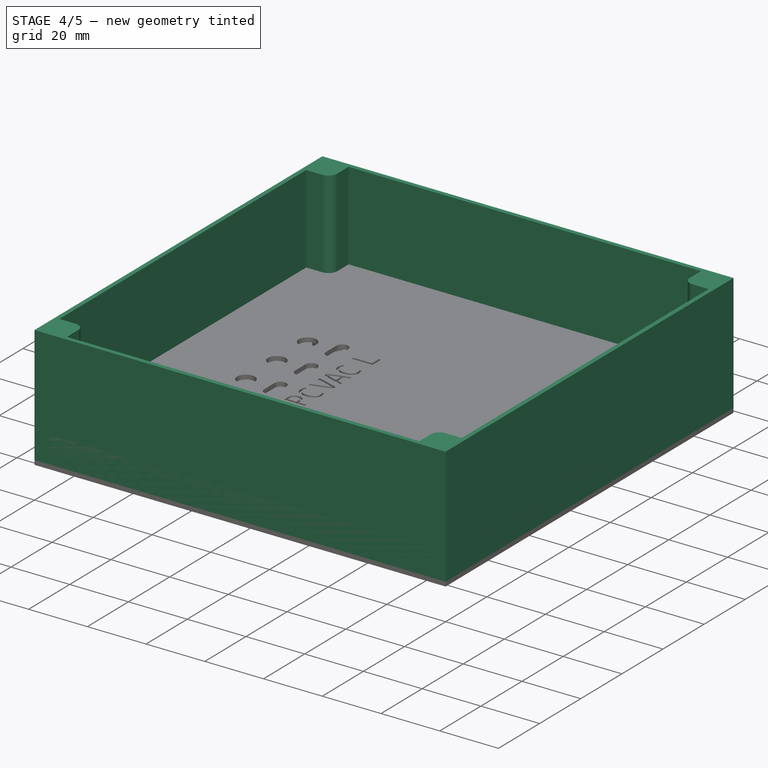
[diagram: stage 4 of 5 — iso view after this stage's code; geometry added in this stage tinted green]
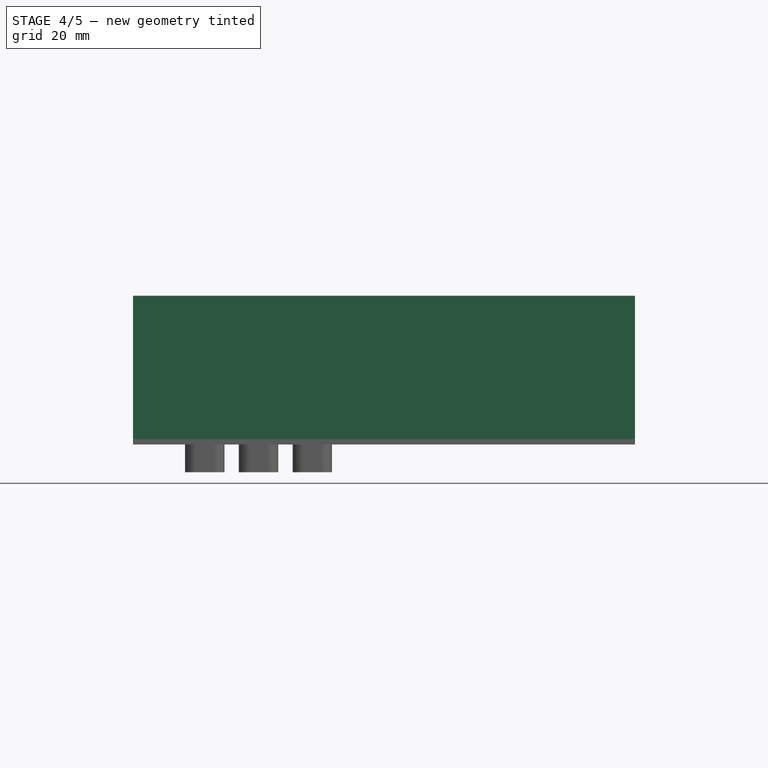
[diagram: stage 4 of 5 — front view after this stage's code; geometry added in this stage tinted green]
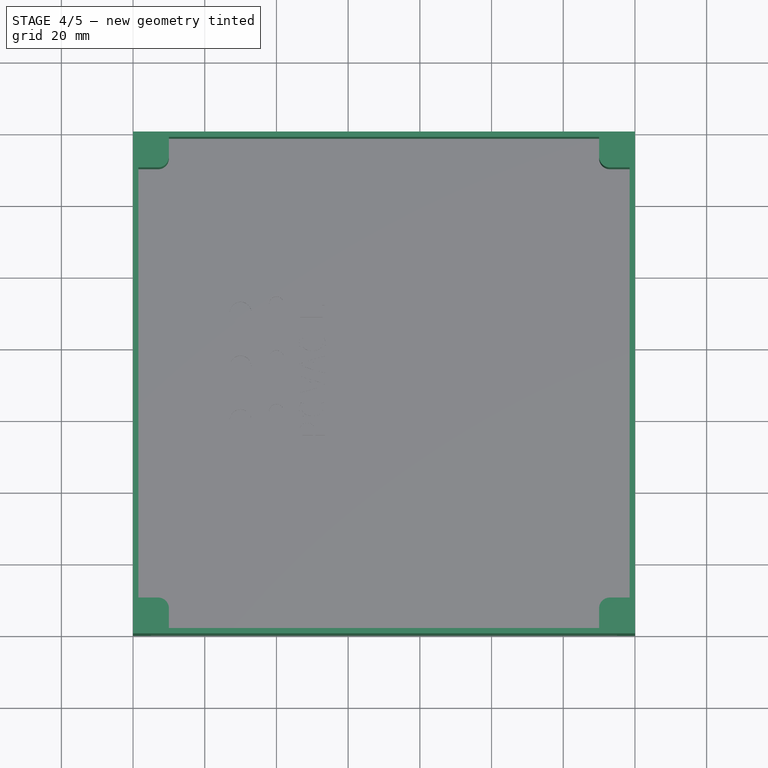
[diagram: stage 4 of 5 — top view after this stage's code; geometry added in this stage tinted green]
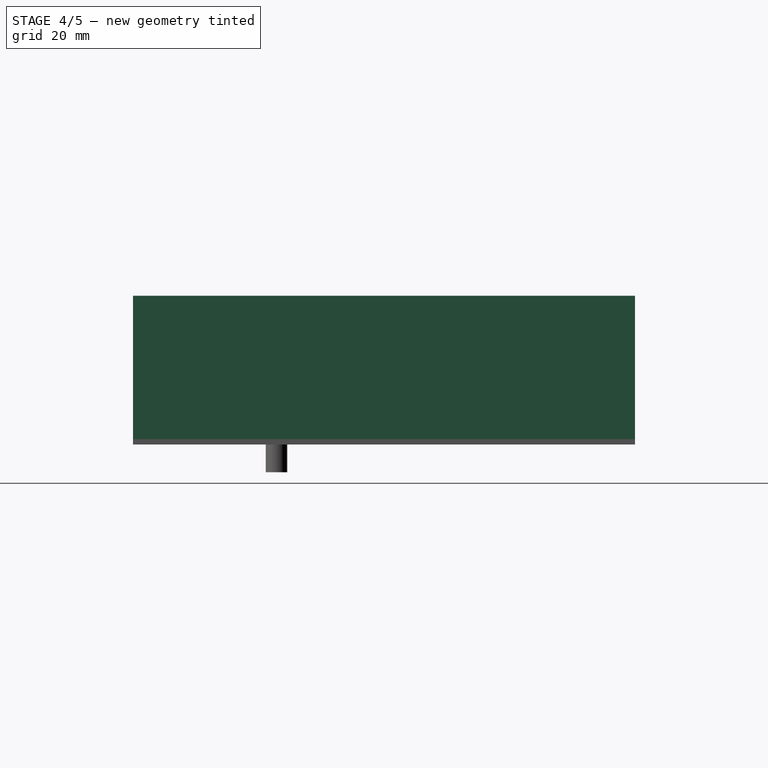
[diagram: stage 4 of 5 — right view after this stage's code; geometry added in this stage tinted green]
FEATURE [Sketcher::SketchObject] Sketch002
  ArcFitTolerance = 0
  AttachmentSupport = -> [XY_Plane002]
  ExternalGeometry = -> [ShapeBinder]
  FullyConstrained = true
  MakeInternals = false
  MapMode = 5
  sketch-geometry (6):
    g0: Circle CenterX=3.81 CenterY=69.85 CenterZ=0 NormalX=0 NormalY=0 NormalZ=1 AngleXU=0 Radius=1.6
    g1: Circle CenterX=53.34 CenterY=69.85 CenterZ=0 NormalX=0 NormalY=0 NormalZ=1 AngleXU=0 Radius=1.6
    g2: Circle CenterX=80.01 CenterY=83.82 CenterZ=0 NormalX=0 NormalY=0 NormalZ=1 AngleXU=0 Radius=1.6
    g3: Circle CenterX=80.01 CenterY=28.575 CenterZ=0 NormalX=0 NormalY=0 NormalZ=1 AngleXU=0 Radius=1.6
    g4: Circle CenterX=53.34 CenterY=3.81 CenterZ=0 NormalX=0 NormalY=0 NormalZ=1 AngleXU=0 Radius=1.6
    g5: Circle CenterX=3.81 CenterY=3.81 CenterZ=0 NormalX=0 NormalY=0 NormalZ=1 AngleXU=0 Radius=1.6
  constraints (12):
    c: Coincident(g0,g-3)
    c: Coincident(g2,g-5)
    c: Coincident(g3,g-6)
    c: Coincident(g4,g-7)
    c: Coincident(g5,g-8)
    c: Coincident(g-4,g1)
    c: Equal(g0,g1)
    c: Equal(g1,g2)
    c: Equal(g2,g3)
    c: Equal(g3,g4)
    c: Equal(g4,g5)
    c: Diameter(g0) = 3.2
FEATURE [Sketcher::SketchObject] Sketch003
  ArcFitTolerance = 0
  AttachmentSupport = -> [XY_Plane002]
  ExternalGeometry = -> [ShapeBinder]
  FullyConstrained = true
  MakeInternals = false
  MapMode = 5
  sketch-geometry (6):
    g0: Circle CenterX=3.81 CenterY=69.85 CenterZ=0 NormalX=0 NormalY=0 NormalZ=1 AngleXU=0 Radius=3
    g1: Circle CenterX=53.34 CenterY=69.85 CenterZ=0 NormalX=0 NormalY=0 NormalZ=1 AngleXU=0 Radius=3
    g2: Circle CenterX=80.01 CenterY=28.575 CenterZ=0 NormalX=0 NormalY=0 NormalZ=1 AngleXU=0 Radius=3
    g3: Circle CenterX=53.34 CenterY=3.81 CenterZ=0 NormalX=0 NormalY=0 NormalZ=1 AngleXU=0 Radius=3
    g4: Circle CenterX=3.81 CenterY=3.81 CenterZ=0 NormalX=0 NormalY=0 NormalZ=1 AngleXU=0 Radius=3
    g5: Circle CenterX=80.01 CenterY=83.82 CenterZ=0 NormalX=0 NormalY=0 NormalZ=1 AngleXU=0 Radius=3
  constraints (12):
    c: Coincident(g0,g-3)
    c: Coincident(g1,g-4)
    c: Coincident(g2,g-6)
    c: Coincident(g3,g-7)
    c: Coincident(g4,g-8)
    c: Coincident(g5,g-5)
    c: Equal(g0,g1)
    c: Equal(g1,g5)
    c: Equal(g5,g2)
    c: Equal(g2,g3)
    c: Equal(g3,g4)
    c: Diameter(g0) = 6
FEATURE [PartDesign::Pad] Pad002
  BaseFeature = -> Pad001
  Direction = (0,0,1)
  Length = 10
  Length2 = 10
  Profile = -> Sketch003
  ReferenceAxis = -> Sketch003 [N_Axis]
  Suppressed = false
  Type = 0
FEATURE [PartDesign::Pocket] Pocket
  BaseFeature = -> Pad002
  Direction = (0,0,-1)
  Length = 5
  Length2 = 5
  Profile = -> Sketch002
  ReferenceAxis = -> Sketch002 [N_Axis]
  Reversed = true
  Suppressed = false
  Type = 1
FEATURE [PartDesign::Plane] DatumPlane
  AttachmentOffset = pos=(0,0,2) rot=(0,0,1;0rad)
  AttachmentSupport = -> [XY_Plane002]
  Length = 173.496
  MapMode = 5
  Placement = pos=(0,0,2) rot=(0,0,1;0rad)
  ResizeMode = 0
  Width = 168.496
FEATURE [Sketcher::SketchObject] Sketch004
  ArcFitTolerance = 0
  AttachmentSupport = -> [DatumPlane]
  ExternalGeometry = -> [ShapeBinder]
  FullyConstrained = true
  MakeInternals = false
  MapMode = 5
  Placement = pos=(0,0,2) rot=(0,0,1;0rad)
  sketch-geometry (42):
    g0: LineSegment StartX=0.96 StartY=72.65 StartZ=0 EndX=6.66 EndY=72.65 EndZ=0
    g1: LineSegment [constr] StartX=6.66 StartY=72.65 StartZ=0 EndX=6.66 EndY=67.05 EndZ=0
    g2: LineSegment StartX=6.66 StartY=67.05 StartZ=0 EndX=0.96 EndY=67.05 EndZ=0
    g3: LineSegment StartX=0.96 StartY=67.05 StartZ=0 EndX=0.96 EndY=72.65 EndZ=0
    g4: LineSegment StartX=6.66 StartY=72.65 StartZ=0 EndX=11.66 EndY=72.65 EndZ=0
    g5: LineSegment StartX=11.66 StartY=72.65 StartZ=0 EndX=11.66 EndY=67.05 EndZ=0
    g6: LineSegment StartX=11.66 StartY=67.05 StartZ=0 EndX=6.66 EndY=67.05 EndZ=0
    g7: LineSegment StartX=50.49 StartY=72.65 StartZ=0 EndX=56.19 EndY=72.65 EndZ=0
    g8: LineSegment [constr] StartX=56.19 StartY=72.65 StartZ=0 EndX=56.19 EndY=67.05 EndZ=0
    g9: LineSegment StartX=56.19 StartY=67.05 StartZ=0 EndX=50.49 EndY=67.05 EndZ=0
    g10: LineSegment StartX=50.49 StartY=67.05 StartZ=0 EndX=50.49 EndY=72.65 EndZ=0
    g11: LineSegment StartX=77.16 StartY=86.62 StartZ=0 EndX=82.86 EndY=86.62 EndZ=0
    g12: LineSegment [constr] StartX=82.86 StartY=86.62 StartZ=0 EndX=82.86 EndY=81.02 EndZ=0
    g13: LineSegment StartX=82.86 StartY=81.02 StartZ=0 EndX=77.16 EndY=81.02 EndZ=0
    g14: LineSegment StartX=77.16 StartY=81.02 StartZ=0 EndX=77.16 EndY=86.62 EndZ=0
    g15: LineSegment StartX=77.16 StartY=31.375 StartZ=0 EndX=82.86 EndY=31.375 EndZ=0
    g16: LineSegment [constr] StartX=82.86 StartY=31.375 StartZ=0 EndX=82.86 EndY=25.775 EndZ=0
    g17: LineSegment StartX=82.86 StartY=25.775 StartZ=0 EndX=77.16 EndY=25.775 EndZ=0
    g18: LineSegment StartX=77.16 StartY=25.775 StartZ=0 EndX=77.16 EndY=31.375 EndZ=0
    g19: LineSegment StartX=50.49 StartY=6.61 StartZ=0 EndX=56.19 EndY=6.61 EndZ=0
    g20: LineSegment [constr] StartX=56.19 StartY=6.61 StartZ=0 EndX=56.19 EndY=1.01 EndZ=0
    g21: LineSegment StartX=56.19 StartY=1.01 StartZ=0 EndX=50.49 EndY=1.01 EndZ=0
    g22: LineSegment StartX=50.49 StartY=1.01 StartZ=0 EndX=50.49 EndY=6.61 EndZ=0
    g23: LineSegment StartX=0.96 StartY=6.61 StartZ=0 EndX=6.66 EndY=6.61 EndZ=0
    g24: LineSegment [constr] StartX=6.66 StartY=6.61 StartZ=0 EndX=6.66 EndY=1.01 EndZ=0
    g25: LineSegment StartX=6.66 StartY=1.01 StartZ=0 EndX=0.96 EndY=1.01 EndZ=0
    g26: LineSegment StartX=0.96 StartY=1.01 StartZ=0 EndX=0.96 EndY=6.61 EndZ=0
    g27: LineSegment StartX=56.19 StartY=72.65 StartZ=0 EndX=61.19 EndY=72.65 EndZ=0
    g28: LineSegment StartX=61.19 StartY=72.65 StartZ=0 EndX=61.19 EndY=67.05 EndZ=0
    g29: LineSegment StartX=61.19 StartY=67.05 StartZ=0 EndX=56.19 EndY=67.05 EndZ=0
    g30: LineSegment StartX=82.86 StartY=86.62 StartZ=0 EndX=87.86 EndY=86.62 EndZ=0
    g31: LineSegment StartX=87.86 StartY=86.62 StartZ=0 EndX=87.86 EndY=81.02 EndZ=0
    g32: LineSegment StartX=87.86 StartY=81.02 StartZ=0 EndX=82.86 EndY=81.02 EndZ=0
    g33: LineSegment StartX=82.86 StartY=31.375 StartZ=0 EndX=87.86 EndY=31.375 EndZ=0
    g34: LineSegment StartX=87.86 StartY=31.375 StartZ=0 EndX=87.86 EndY=25.775 EndZ=0
    g35: LineSegment StartX=87.86 StartY=25.775 StartZ=0 EndX=82.86 EndY=25.775 EndZ=0
    g36: LineSegment StartX=56.19 StartY=6.61 StartZ=0 EndX=61.19 EndY=6.61 EndZ=0
    g37: LineSegment StartX=61.19 StartY=6.61 StartZ=0 EndX=61.19 EndY=1.01 EndZ=0
    g38: LineSegment StartX=61.19 StartY=1.01 StartZ=0 EndX=56.19 EndY=1.01 EndZ=0
    g39: LineSegment StartX=6.66 StartY=6.61 StartZ=0 EndX=11.66 EndY=6.61 EndZ=0
    g40: LineSegment StartX=11.66 StartY=6.61 StartZ=0 EndX=11.66 EndY=1.01 EndZ=0
    g41: LineSegment StartX=11.66 StartY=1.01 StartZ=0 EndX=6.66 EndY=1.01 EndZ=0
  constraints (114):
    c: Coincident(g0,g1)
    c: Coincident(g1,g2)
    c: Coincident(g2,g3)
    c: Coincident(g3,g0)
    c: Horizontal(g0)
    c: Horizontal(g2)
    c: Vertical(g1)
    c: Vertical(g3)
    c: Coincident(g4,g0)
    c: Horizontal(g4)
    c: Coincident(g5,g4)
    c: Vertical(g5)
    c: Coincident(g6,g5)
    c: Coincident(g6,g1)
    c: Horizontal(g6)
    c: Symmetric(g2,g0,g-3)
    c: Distance(g3) = 5.6
    c: Distance(g0) = 5.7
    c: Distance(g4) = 5
    c: Coincident(g7,g8)
    c: Coincident(g8,g9)
    c: Coincident(g9,g10)
    c: Coincident(g10,g7)
    c: Horizontal(g7)
    c: Horizontal(g9)
    c: Vertical(g8)
    c: Vertical(g10)
    c: Coincident(g11,g12)
    c: Coincident(g12,g13)
    c: Coincident(g13,g14)
    c: Coincident(g14,g11)
    c: Horizontal(g11)
    c: Horizontal(g13)
    c: Vertical(g12)
    c: Vertical(g14)
    c: Coincident(g15,g16)
    c: Coincident(g16,g17)
    c: Coincident(g17,g18)
    c: Coincident(g18,g15)
    c: Horizontal(g15)
    c: Horizontal(g17)
    c: Vertical(g16)
    c: Vertical(g18)
    c: Coincident(g19,g20)
    c: Coincident(g20,g21)
    c: Coincident(g21,g22)
    c: Coincident(g22,g19)
    c: Horizontal(g19)
    c: Horizontal(g21)
    c: Vertical(g20)
    c: Vertical(g22)
    c: Coincident(g23,g24)
    c: Coincident(g24,g25)
    c: Coincident(g25,g26)
    c: Coincident(g26,g23)
    c: Horizontal(g23)
    c: Horizontal(g25)
    c: Vertical(g24)
    c: Vertical(g26)
    c: Symmetric(g25,g23,g-8)
    c: Symmetric(g21,g19,g-6)
    c: Symmetric(g17,g15,g-7)
    c: Symmetric(g9,g7,g-4)
    c: Symmetric(g13,g11,g-5)
    c: Equal(g0,g7)
    c: Equal(g7,g11)
    c: Equal(g11,g15)
    c: Equal(g15,g19)
    c: Equal(g19,g23)
    c: Equal(g26,g22)
    c: Equal(g22,g18)
    c: Equal(g18,g14)
    c: Equal(g14,g10)
    c: Equal(g10,g3)
    c: Coincident(g27,g7)
    c: Coincident(g28,g27)
    c: Vertical(g28)
    c: Coincident(g29,g28)
    c: Coincident(g29,g9)
    c: Horizontal(g29)
    c: Horizontal(g27)
    c: Coincident(g30,g11)
    c: Horizontal(g30)
    c: Coincident(g31,g30)
    c: Vertical(g31)
    c: Coincident(g32,g31)
    c: Coincident(g32,g13)
    c: Horizontal(g32)
    c: Coincident(g33,g15)
    c: Horizontal(g33)
    c: Coincident(g34,g33)
    c: Vertical(g34)
    c: Coincident(g35,g34)
    c: Coincident(g35,g17)
    c: Horizontal(g35)
    c: Coincident(g36,g19)
    c: Horizontal(g36)
    c: Coincident(g37,g36)
    c: Vertical(g37)
    c: Coincident(g38,g37)
    c: Coincident(g38,g21)
    c: Horizontal(g38)
    c: Coincident(g39,g23)
    c: Coincident(g40,g39)
    c: Vertical(g40)
    c: Coincident(g41,g40)
    c: Coincident(g41,g25)
    c: Horizontal(g39)
    c: Horizontal(g41)
    c: Equal(g39,g36)
    c: Equal(g36,g33)
    c: Equal(g33,g30)
    c: Equal(g30,g27)
    c: Equal(g27,g4)
FEATURE [PartDesign::Pocket] Pocket001
  BaseFeature = -> Pocket
  Direction = (0,0,-1)
  Length = 2
  Length2 = 5
  Profile = -> Sketch004
  ReferenceAxis = -> Sketch004 [N_Axis]
  Reversed = true
  Suppressed = false
  Type = 0
FEATURE [Sketcher::SketchObject] Sketch005
  ArcFitTolerance = 0
  AttachmentSupport = -> [XY_Plane002]
  ExternalGeometry = -> [Pocket001]
  FullyConstrained = true
  MakeInternals = false
  MapMode = 5
  sketch-geometry (12):
    g0: Circle [constr] CenterX=-5 CenterY=85 CenterZ=0 NormalX=0 NormalY=0 NormalZ=1 AngleXU=0 Radius=2.25
    g1: Circle CenterX=105 CenterY=85 CenterZ=0 NormalX=0 NormalY=0 NormalZ=1 AngleXU=0 Radius=2.25
    g2: Circle [constr] CenterX=105 CenterY=-25 CenterZ=0 NormalX=0 NormalY=0 NormalZ=1 AngleXU=0 Radius=2.25
    g3: Circle CenterX=-5 CenterY=-25 CenterZ=0 NormalX=0 NormalY=0 NormalZ=1 AngleXU=0 Radius=2.25
    g4: ArcOfCircle CenterX=-8.53553 CenterY=81.4645 CenterZ=0 NormalX=0 NormalY=0 NormalZ=1 AngleXU=0 Radius=2.25 StartAngle=2.35619 EndAngle=5.49779
    g5: LineSegment StartX=-10.1265 StartY=83.0555 StartZ=0 EndX=-3.05546 EndY=90.1265 EndZ=0
    g6: LineSegment StartX=-6.94454 StartY=79.8735 StartZ=0 EndX=0.126524 EndY=86.9445 EndZ=0
    g7: ArcOfCircle CenterX=-1.46447 CenterY=88.5355 CenterZ=0 NormalX=0 NormalY=0 NormalZ=1 AngleXU=0 Radius=2.25 StartAngle=5.49779 EndAngle=8.63938
    g8: LineSegment StartX=99.8735 StartY=-23.0555 StartZ=0 EndX=106.945 EndY=-30.1265 EndZ=0
    g9: LineSegment StartX=103.055 StartY=-19.8735 StartZ=0 EndX=110.127 EndY=-26.9445 EndZ=0
    g10: ArcOfCircle CenterX=101.464 CenterY=-21.4645 CenterZ=0 NormalX=0 NormalY=0 NormalZ=1 AngleXU=0 Radius=2.25 StartAngle=0.785398 EndAngle=3.92699
    g11: ArcOfCircle CenterX=108.536 CenterY=-28.5355 CenterZ=0 NormalX=0 NormalY=0 NormalZ=1 AngleXU=0 Radius=2.25 StartAngle=3.92699 EndAngle=7.06858
  constraints (30):
    c: Horizontal(g3,g2)
    c: Horizontal(g0,g1)
    c: Vertical(g0,g3)
    c: Vertical(g1,g2)
    c: Distance(g0,g-4) = 15
    c: Distance(g0,g-3) = 15
    c: Distance(g3,g-6) = 15
    c: Distance(g1,g-5) = 15
    c: Equal(g0,g1)
    c: Equal(g1,g2)
    c: Equal(g2,g3)
    c: Diameter(g0) = 4.5
    c: Tangent(g5,g4) = 1.5708
    c: Tangent(g6,g4) = -1.5708
    c: Parallel(g5,g6)
    c: Tangent(g5,g7) = 1.5708
    c: Tangent(g7,g6) = -1.5708
    c: Symmetric(g4,g7,g0)
    c: Angle(g5) = 0.785398
    c: Distance(g4,g4) = 4.5
    c: Distance(g4,g7) = 10
    c: Parallel(g8,g9)
    c: Tangent(g8,g10) = -1.5708
    c: Tangent(g10,g9) = 1.5708
    c: Tangent(g11,g8) = -1.5708
    c: Tangent(g11,g9) = 1.5708
    c: Equal(g4,g10)
    c: Symmetric(g10,g11,g2)
    c: Angle(g9) = -0.785398
    c: Distance(g10,g11) = 10
FEATURE [PartDesign::Pocket] Pocket002  label="Pocket002-mounting-holes"
  BaseFeature = -> Pocket001
  Direction = (0,0,-1)
  Length = 5
  Length2 = 5
  Profile = -> Sketch005
  ReferenceAxis = -> Sketch005 [N_Axis]
  Suppressed = false
  Type = 1
FEATURE [Sketcher::SketchObject] Sketch006
  ArcFitTolerance = 0
  AttachmentSupport = -> [XY_Plane002]
  ExternalGeometry = -> [Pocket002]
  FullyConstrained = true
  MakeInternals = false
  MapMode = 5
  expr: Constraints[14] = <<params>>.box_wall
  expr: Constraints[15] = <<params>>.box_wall
  expr: Constraints[25] = <<params>>.corner_width
  expr: Constraints[71] = <<params>>.corner_inner_radius
  expr: Constraints[72] = <<params>>.box_wall
  expr: Constraints[73] = <<params>>.box_wall
  sketch-geometry (28):
    g0: LineSegment StartX=-20 StartY=100 StartZ=0 EndX=120 EndY=100 EndZ=0
    g1: LineSegment StartX=120 StartY=100 StartZ=0 EndX=120 EndY=-40 EndZ=0
    g2: LineSegment StartX=120 StartY=-40 StartZ=0 EndX=-20 EndY=-40 EndZ=0
    g3: LineSegment StartX=-20 StartY=-40 StartZ=0 EndX=-20 EndY=100 EndZ=0
    g4: LineSegment [constr] StartX=-18.5 StartY=-30 StartZ=0 EndX=-18.5 EndY=-38.5 EndZ=0
    g5: LineSegment [constr] StartX=-18.5 StartY=-38.5 StartZ=0 EndX=-10 EndY=-38.5 EndZ=0
    g6: LineSegment StartX=-18.5 StartY=-30 StartZ=0 EndX=-13 EndY=-30 EndZ=0
    g7: LineSegment StartX=-10 StartY=-33 StartZ=0 EndX=-10 EndY=-38.5 EndZ=0
    g8: LineSegment [constr] StartX=-18.5 StartY=98.5 StartZ=0 EndX=-18.5 EndY=90 EndZ=0
    g9: LineSegment StartX=-18.5 StartY=90 StartZ=0 EndX=-18.5 EndY=-30 EndZ=0
    g10: LineSegment [constr] StartX=-10 StartY=98.5 StartZ=0 EndX=-18.5 EndY=98.5 EndZ=0
    g11: LineSegment StartX=-18.5 StartY=90 StartZ=0 EndX=-13 EndY=90 EndZ=0
    g12: LineSegment StartX=-10 StartY=93 StartZ=0 EndX=-10 EndY=98.5 EndZ=0
    g13: LineSegment StartX=-10 StartY=-38.5 StartZ=0 EndX=110 EndY=-38.5 EndZ=0
    g14: LineSegment [constr] StartX=110 StartY=-38.5 StartZ=0 EndX=118.5 EndY=-38.5 EndZ=0
    g15: LineSegment [constr] StartX=118.5 StartY=-38.5 StartZ=0 EndX=118.5 EndY=-30 EndZ=0
    g16: LineSegment StartX=110 StartY=-38.5 StartZ=0 EndX=110 EndY=-33 EndZ=0
    g17: LineSegment StartX=113 StartY=-30 StartZ=0 EndX=118.5 EndY=-30 EndZ=0
    g18: LineSegment [constr] StartX=118.5 StartY=98.5 StartZ=0 EndX=110 EndY=98.5 EndZ=0
    g19: LineSegment StartX=110 StartY=98.5 StartZ=0 EndX=-10 EndY=98.5 EndZ=0
    g20: LineSegment StartX=118.5 StartY=-30 StartZ=0 EndX=118.5 EndY=90 EndZ=0
    g21: LineSegment [constr] StartX=118.5 StartY=90 StartZ=0 EndX=118.5 EndY=98.5 EndZ=0
    g22: LineSegment StartX=110 StartY=98.5 StartZ=0 EndX=110 EndY=93 EndZ=0
    g23: LineSegment StartX=113 StartY=90 StartZ=0 EndX=118.5 EndY=90 EndZ=0
    g24: ArcOfCircle CenterX=-13 CenterY=93 CenterZ=0 NormalX=0 NormalY=0 NormalZ=1 AngleXU=0 Radius=3 StartAngle=4.71239 EndAngle=6.28319
    g25: ArcOfCircle CenterX=113 CenterY=93 CenterZ=0 NormalX=0 NormalY=0 NormalZ=1 AngleXU=0 Radius=3 StartAngle=3.14159 EndAngle=4.71239
    g26: ArcOfCircle CenterX=113 CenterY=-33 CenterZ=0 NormalX=0 NormalY=0 NormalZ=1 AngleXU=0 Radius=3 StartAngle=1.5708 EndAngle=3.14159
    g27: ArcOfCircle CenterX=-13 CenterY=-33 CenterZ=0 NormalX=0 NormalY=0 NormalZ=1 AngleXU=0 Radius=3 StartAngle=6e-16 EndAngle=1.5708
  constraints (74):
    c: Coincident(g14,g15)
    c: Coincident(g21,g18)
    c: Coincident(g10,g8)
    c: Coincident(g4,g5)
    c: Coincident(g0,g1)
    c: Coincident(g1,g2)
    c: Coincident(g2,g3)
    c: Coincident(g3,g0)
    c: Horizontal(g0)
    c: Horizontal(g2)
    c: Vertical(g1)
    c: Vertical(g3)
    c: Coincident(g0,g-4)
    c: Coincident(g1,g-6)
    c: DistanceX(g0,g10) = 1.5
    c: DistanceY(g10,g0) = 1.5
    c: Coincident(g9,g4)
    c: Vertical(g4)
    c: Coincident(g5,g13)
    c: Horizontal(g5)
    c: Coincident(g6,g9)
    c: Horizontal(g6)
    c: Coincident(g7,g5)
    c: Vertical(g7)
    c: Equal(g6,g7)
    c: Distance(g5,g3) = 10
    c: Coincident(g8,g9)
    c: Vertical(g8)
    c: Vertical(g9)
    c: Coincident(g19,g10)
    c: Horizontal(g10)
    c: Coincident(g11,g8)
    c: Coincident(g12,g19)
    c: Horizontal(g11)
    c: Vertical(g12)
    c: Equal(g11,g12)
    c: Equal(g11,g6)
    c: Coincident(g13,g14)
    c: Horizontal(g13)
    c: Horizontal(g14)
    c: Coincident(g15,g20)
    c: Vertical(g15)
    c: Coincident(g16,g13)
    c: Vertical(g16)
    c: Coincident(g17,g15)
    c: Horizontal(g17)
    c: Equal(g16,g17)
    c: Coincident(g18,g19)
    c: Horizontal(g18)
    c: Horizontal(g19)
    c: Coincident(g20,g21)
    c: Vertical(g20)
    c: Vertical(g21)
    c: Coincident(g22,g18)
    c: Vertical(g22)
    c: Coincident(g23,g20)
    c: Horizontal(g23)
    c: Equal(g22,g23)
    c: Equal(g22,g12)
    c: Tangent(g11,g24) = -1.5708
    c: Tangent(g12,g24) = -1.5708
    c: Tangent(g22,g25) = -1.5708
    c: Tangent(g23,g25) = -1.5708
    c: Tangent(g17,g26) = 1.5708
    c: Tangent(g16,g26) = 1.5708
    c: Tangent(g6,g27) = 1.5708
    c: Tangent(g7,g27) = 1.5708
    c: Equal(g5,g14)
    c: Equal(g14,g18)
    c: Equal(g25,g24)
    c: Equal(g24,g26)
    c: Radius(g27) = 3
    c: DistanceX(g14,g1) = 1.5
    c: DistanceY(g1,g14) = 1.5
FEATURE [PartDesign::Pad] Pad003
  BaseFeature = -> Pocket002
  Direction = (0,0,1)
  Length = 40
  Length2 = 10
  Profile = -> Sketch006
  ReferenceAxis = -> Sketch006 [N_Axis]
  Suppressed = false
  Type = 0
  expr: Length = <<params>>.box_height
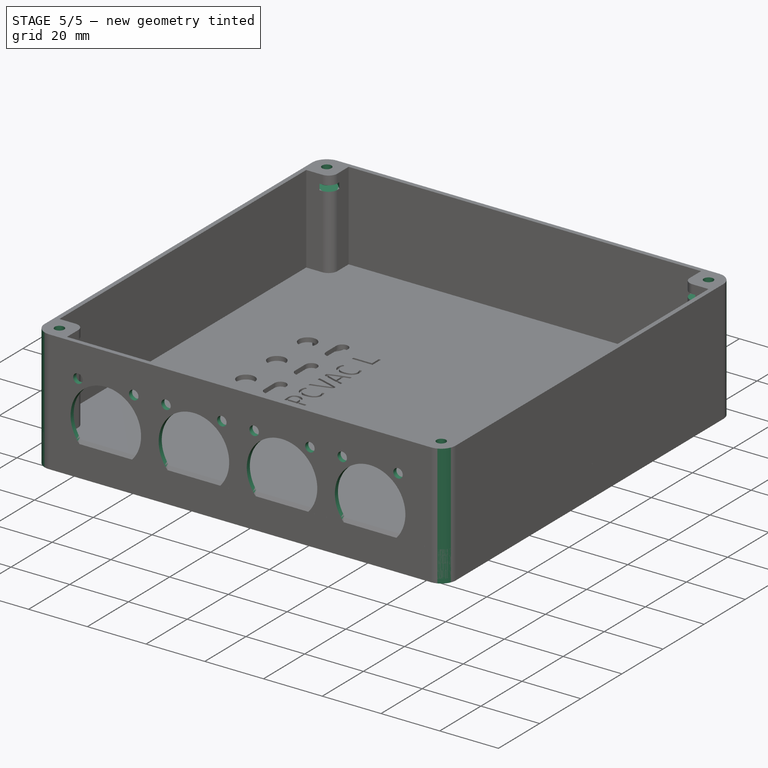
[diagram: stage 5 of 5 — iso view after this stage's code; geometry added in this stage tinted green]
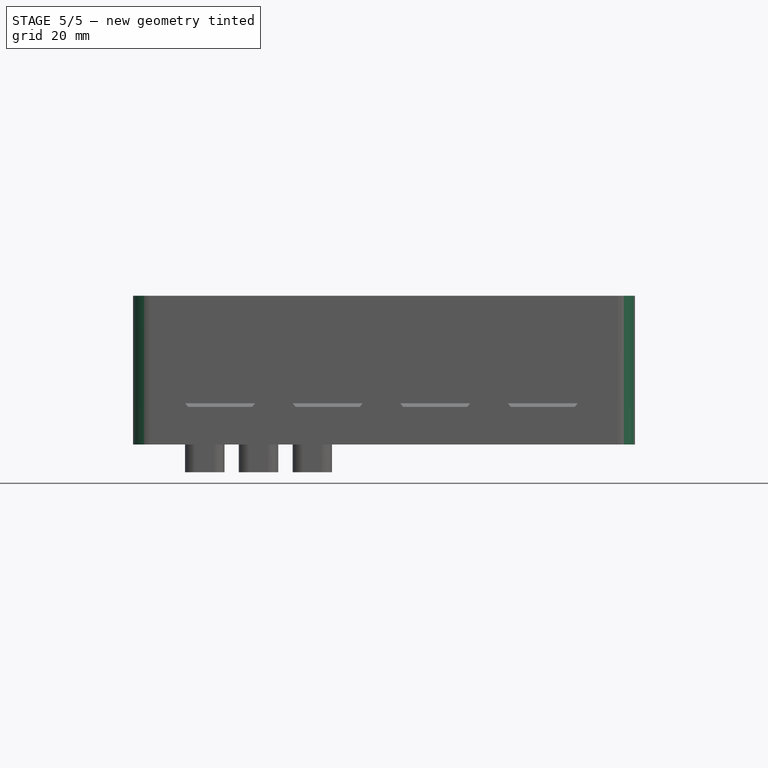
[diagram: stage 5 of 5 — front view after this stage's code; geometry added in this stage tinted green]
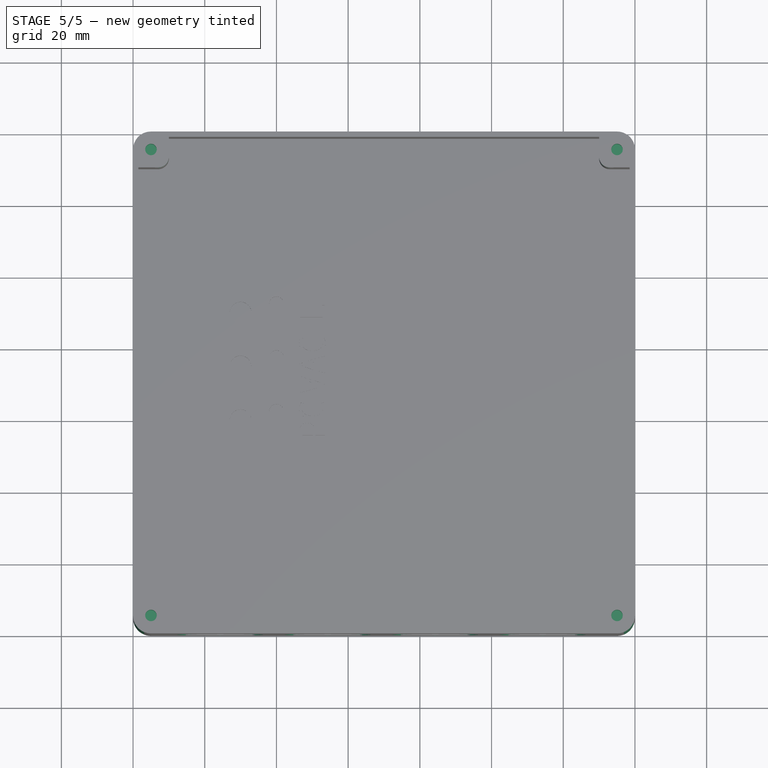
[diagram: stage 5 of 5 — top view after this stage's code; geometry added in this stage tinted green]
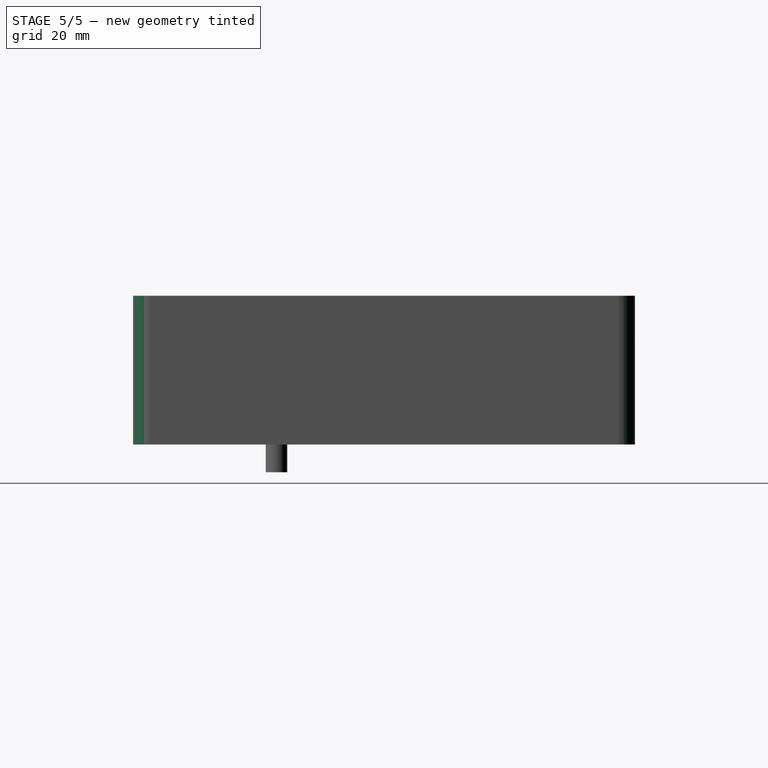
[diagram: stage 5 of 5 — right view after this stage's code; geometry added in this stage tinted green]
FEATURE [Sketcher::SketchObject] Sketch008
  ArcFitTolerance = 0
  ExternalGeometry = -> [ShapeBinder]
  FullyConstrained = true
  MakeInternals = false
  MapMode = 5
  Placement = pos=(0,-40,0) rot=(1,0,0;1.5708rad)
  sketch-geometry (45):
    g0: Circle CenterX=24.79 CenterY=29 CenterZ=0 NormalX=0 NormalY=0 NormalZ=1 AngleXU=0 Radius=1.6
    g1: Circle CenterX=43.79 CenterY=5 CenterZ=0 NormalX=0 NormalY=0 NormalZ=1 AngleXU=0 Radius=1.6
    g2: Circle CenterX=34.29 CenterY=17 CenterZ=0 NormalX=0 NormalY=0 NormalZ=1 AngleXU=0 Radius=12
    g3: GeomPoint [constr] X=34.29 Y=9.4e-15 Z=0
    g4: LineSegment [constr] StartX=24.79 StartY=29 StartZ=0 EndX=43.79 EndY=29 EndZ=0
    g5: LineSegment [constr] StartX=43.79 StartY=29 StartZ=0 EndX=43.79 EndY=5 EndZ=0
    g6: Circle CenterX=84.79 CenterY=29 CenterZ=0 NormalX=0 NormalY=0 NormalZ=1 AngleXU=0 Radius=1.6
    g7: Circle CenterX=103.79 CenterY=5 CenterZ=0 NormalX=0 NormalY=0 NormalZ=1 AngleXU=0 Radius=1.6
    g8: Circle CenterX=94.29 CenterY=17 CenterZ=0 NormalX=0 NormalY=0 NormalZ=1 AngleXU=0 Radius=12
    g9: LineSegment [constr] StartX=84.79 StartY=29 StartZ=0 EndX=103.79 EndY=29 EndZ=0
    g10: LineSegment [constr] StartX=103.79 StartY=29 StartZ=0 EndX=103.79 EndY=5 EndZ=0
    g11: Circle CenterX=-5.21 CenterY=29 CenterZ=0 NormalX=0 NormalY=0 NormalZ=1 AngleXU=0 Radius=1.6
    g12: Circle CenterX=13.79 CenterY=5 CenterZ=0 NormalX=0 NormalY=0 NormalZ=1 AngleXU=0 Radius=1.6
    g13: Circle CenterX=4.29 CenterY=17 CenterZ=0 NormalX=0 NormalY=0 NormalZ=1 AngleXU=0 Radius=12
    g14: LineSegment [constr] StartX=-5.21 StartY=29 StartZ=0 EndX=13.79 EndY=29 EndZ=0
    g15: LineSegment [constr] StartX=13.79 StartY=29 StartZ=0 EndX=13.79 EndY=5 EndZ=0
    g16: Circle CenterX=54.79 CenterY=29 CenterZ=0 NormalX=0 NormalY=0 NormalZ=1 AngleXU=0 Radius=1.6
    g17: Circle CenterX=73.79 CenterY=5 CenterZ=0 NormalX=0 NormalY=0 NormalZ=1 AngleXU=0 Radius=1.6
    g18: Circle CenterX=64.29 CenterY=17 CenterZ=0 NormalX=0 NormalY=0 NormalZ=1 AngleXU=0 Radius=12
    g19: LineSegment [constr] StartX=54.79 StartY=29 StartZ=0 EndX=73.79 EndY=29 EndZ=0
    g20: LineSegment [constr] StartX=73.79 StartY=29 StartZ=0 EndX=73.79 EndY=5 EndZ=0
    g21: LineSegment [constr] StartX=21.29 StartY=32.5 StartZ=0 EndX=47.29 EndY=32.5 EndZ=0
    g22: LineSegment [constr] StartX=47.29 StartY=32.5 StartZ=0 EndX=47.29 EndY=1.5 EndZ=0
    g23: LineSegment [constr] StartX=47.29 StartY=1.5 StartZ=0 EndX=21.29 EndY=1.5 EndZ=0
    g24: LineSegment [constr] StartX=21.29 StartY=1.5 StartZ=0 EndX=21.29 EndY=32.5 EndZ=0
    g25: LineSegment [constr] StartX=51.29 StartY=1.5 StartZ=0 EndX=77.29 EndY=1.5 EndZ=0
    g26: LineSegment [constr] StartX=77.29 StartY=1.5 StartZ=0 EndX=77.29 EndY=32.5 EndZ=0
    g27: LineSegment [constr] StartX=77.29 StartY=32.5 StartZ=0 EndX=51.29 EndY=32.5 EndZ=0
    g28: LineSegment [constr] StartX=51.29 StartY=32.5 StartZ=0 EndX=51.29 EndY=1.5 EndZ=0
    g29: LineSegment [constr] StartX=-8.71 StartY=1.5 StartZ=0 EndX=17.29 EndY=1.5 EndZ=0
    g30: LineSegment [constr] StartX=17.29 StartY=1.5 StartZ=0 EndX=17.29 EndY=32.5 EndZ=0
    g31: LineSegment [constr] StartX=17.29 StartY=32.5 StartZ=0 EndX=-8.71 EndY=32.5 EndZ=0
    g32: LineSegment [constr] StartX=-8.71 StartY=32.5 StartZ=0 EndX=-8.71 EndY=1.5 EndZ=0
    g33: LineSegment [constr] StartX=81.29 StartY=32.5 StartZ=0 EndX=107.29 EndY=32.5 EndZ=0
    g34: LineSegment [constr] StartX=107.29 StartY=32.5 StartZ=0 EndX=107.29 EndY=1.5 EndZ=0
    g35: LineSegment [constr] StartX=107.29 StartY=1.5 StartZ=0 EndX=81.29 EndY=1.5 EndZ=0
    g36: LineSegment [constr] StartX=81.29 StartY=1.5 StartZ=0 EndX=81.29 EndY=32.5 EndZ=0
    g37: Circle CenterX=13.79 CenterY=29 CenterZ=0 NormalX=0 NormalY=0 NormalZ=1 AngleXU=0 Radius=1.6
    g38: Circle CenterX=43.79 CenterY=29 CenterZ=0 NormalX=0 NormalY=0 NormalZ=1 AngleXU=0 Radius=1.6
    g39: Circle CenterX=73.79 CenterY=29 CenterZ=0 NormalX=0 NormalY=0 NormalZ=1 AngleXU=0 Radius=1.6
    g40: Circle CenterX=103.79 CenterY=29 CenterZ=0 NormalX=0 NormalY=0 NormalZ=1 AngleXU=0 Radius=1.6
    g41: Circle CenterX=-5.21 CenterY=5 CenterZ=0 NormalX=0 NormalY=0 NormalZ=1 AngleXU=0 Radius=1.6
    g42: Circle CenterX=24.79 CenterY=5 CenterZ=0 NormalX=0 NormalY=0 NormalZ=1 AngleXU=0 Radius=1.6
    g43: Circle CenterX=54.79 CenterY=5 CenterZ=0 NormalX=0 NormalY=0 NormalZ=1 AngleXU=0 Radius=1.6
    g44: Circle CenterX=84.79 CenterY=5 CenterZ=0 NormalX=0 NormalY=0 NormalZ=1 AngleXU=0 Radius=1.6
  constraints (115):
    c: Equal(g1,g0)
    c: Diameter(g0) = 3.2
    c: Diameter(g2) = 24
    c: Symmetric(g0,g1,g2)
    c: Vertical(g3,g2)
    c: DistanceY(g-1,g1) = 5
    c: Coincident(g4,g0)
    c: Coincident(g5,g4)
    c: Coincident(g5,g1)
    c: Horizontal(g4)
    c: Vertical(g5)
    c: Distance(g4) = 19
    c: Distance(g5) = 24
    c: Equal(g7,g6)
    c: Equal(g0,g6) = 3.2
    c: Equal(g2,g8) = 24
    c: Symmetric(g6,g7,g8)
    c: Coincident(g9,g6)
    c: Coincident(g10,g9)
    c: Coincident(g10,g7)
    c: Horizontal(g9)
    c: Vertical(g10)
    c: Equal(g4,g9) = 19
    c: Equal(g5,g10) = 24
    c: Horizontal(g2,g8)
    c: Equal(g12,g11)
    c: Equal(g0,g11) = 3.2
    c: Equal(g2,g13) = 24
    c: Symmetric(g11,g12,g13)
    c: Coincident(g14,g11)
    c: Coincident(g15,g14)
    c: Coincident(g15,g12)
    c: Horizontal(g14)
    c: Vertical(g15)
    c: Equal(g4,g14) = 19
    c: Equal(g5,g15) = 24
    c: Equal(g17,g16)
    c: Equal(g0,g16) = 3.2
    c: Equal(g2,g18) = 24
    c: Symmetric(g16,g17,g18)
    c: Coincident(g19,g16)
    c: Coincident(g20,g19)
    c: Coincident(g20,g17)
    c: Horizontal(g19)
    c: Vertical(g20)
    c: Equal(g4,g19) = 19
    c: Equal(g5,g20) = 24
    c: Coincident(g21,g22)
    c: Coincident(g22,g23)
    c: Coincident(g23,g24)
    c: Coincident(g24,g21)
    c: Horizontal(g21)
    c: Horizontal(g23)
    c: Vertical(g22)
    c: Vertical(g24)
    c: Symmetric(g21,g22,g2)
    c: Distance(g24) = 31
    c: Distance(g21) = 26
    c: Coincident(g25,g26)
    c: Coincident(g26,g27)
    c: Coincident(g27,g28)
    c: Coincident(g28,g25)
    c: Horizontal(g25)
    c: Horizontal(g27)
    c: Vertical(g26)
    c: Vertical(g28)
    c: Equal(g28,g24)
    c: Equal(g27,g21)
    c: Coincident(g29,g30)
    c: Coincident(g30,g31)
    c: Coincident(g31,g32)
    c: Coincident(g32,g29)
    c: Horizontal(g29)
    c: Horizontal(g31)
    c: Vertical(g30)
    c: Vertical(g32)
    c: Symmetric(g31,g29,g13)
    c: Equal(g31,g21)
    c: Equal(g32,g24)
    c: Coincident(g33,g34)
    c: Coincident(g34,g35)
    c: Coincident(g35,g36)
    c: Coincident(g36,g33)
    c: Horizontal(g33)
    c: Horizontal(g35)
    c: Vertical(g34)
    c: Vertical(g36)
    c: Symmetric(g33,g34,g8)
    c: Equal(g36,g24)
    c: Symmetric(g27,g25,g18)
    c: Symmetric(g2,g8,g18)
    c: Equal(g33,g21)
    c: Symmetric(g18,g13,g2)
    c: Distance(g2,g13) = 30
    c: Symmetric(g-3,g-3,g3)
    c: Coincident(g37,g14)
    c: Coincident(g38,g4)
    c: Coincident(g39,g19)
    c: Coincident(g40,g9)
    c: Equal(g44,g43)
    c: Equal(g43,g42)
    c: Equal(g42,g41)
    c: Equal(g41,g37)
    c: Equal(g37,g38)
    c: Equal(g38,g39)
    c: Equal(g39,g40)
    c: Equal(g40,g0)
    c: Vertical(g11,g41)
    c: Horizontal(g41,g12)
    c: Horizontal(g42,g1)
    c: Vertical(g42,g0)
    c: Vertical(g43,g16)
    c: Horizontal(g43,g17)
    c: Horizontal(g44,g7)
    c: Vertical(g44,g6)
FEATURE [PartDesign::Pocket] Pocket003
  BaseFeature = -> Pad003
  Direction = (0,1,-2e-16)
  Length = 25
  Length2 = 5
  Profile = -> Sketch008
  ReferenceAxis = -> Sketch008 [N_Axis]
  Suppressed = false
  Type = 0
FEATURE [PartDesign::Plane] DatumPlane001
  AttachmentOffset = pos=(0,0,37) rot=(0,0,1;0rad)
  AttachmentSupport = -> [XY_Plane002]
  Length = 173.496
  MapMode = 5
  Placement = pos=(0,0,37) rot=(0,0,1;0rad)
  ResizeMode = 0
  Width = 168.496
  expr: .AttachmentOffset.Base.z = (<<params>>.box_height - 3) * 1 mm
FEATURE [Sketcher::SketchObject] Sketch009
  ArcFitTolerance = 0
  AttachmentSupport = -> [DatumPlane001]
  FullyConstrained = true
  MakeInternals = false
  MapMode = 5
  Placement = pos=(0,0,37) rot=(0,0,1;0rad)
  expr: Constraints[80] = <<params>>.origin_offset_X - <<params>>.hole_offset
  expr: Constraints[81] = <<params>>.origin_offset_Y - <<params>>.hole_offset
  expr: Constraints[82] = <<params>>.box_length - 2 * <<params>>.hole_offset
  expr: Constraints[83] = <<params>>.box_width - 2 * <<params>>.hole_offset
  sketch-geometry (32):
    g0: LineSegment StartX=-18.9952 StartY=95 StartZ=0 EndX=-15 EndY=91.0048 EndZ=0
    g1: LineSegment [constr] StartX=-15 StartY=91.0048 StartZ=0 EndX=-11.0048 EndY=95 EndZ=0
    g2: LineSegment StartX=-11.0048 StartY=95 StartZ=0 EndX=-15 EndY=98.9952 EndZ=0
    g3: LineSegment StartX=-15 StartY=98.9952 StartZ=0 EndX=-18.9952 EndY=95 EndZ=0
    g4: LineSegment StartX=-15 StartY=91.0048 StartZ=0 EndX=-11.4645 EndY=87.4693 EndZ=0
    g5: LineSegment StartX=-11.4645 StartY=87.4693 StartZ=0 EndX=-7.46931 EndY=91.4645 EndZ=0
    g6: LineSegment StartX=-7.46931 StartY=91.4645 StartZ=0 EndX=-11.0048 EndY=95 EndZ=0
    g7: GeomPoint [constr] X=-15 Y=95 Z=0
    g8: GeomPoint [constr] X=115 Y=95 Z=0
    g9: GeomPoint [constr] X=-15 Y=-35 Z=0
    g10: GeomPoint [constr] X=115 Y=-35 Z=0
    g11: LineSegment StartX=115 StartY=98.9952 StartZ=0 EndX=111.005 EndY=95 EndZ=0
    g12: LineSegment [constr] StartX=111.005 StartY=95 StartZ=0 EndX=115 EndY=91.0048 EndZ=0
    g13: LineSegment StartX=115 StartY=91.0048 StartZ=0 EndX=118.995 EndY=95 EndZ=0
    g14: LineSegment StartX=118.995 StartY=95 StartZ=0 EndX=115 EndY=98.9952 EndZ=0
    g15: LineSegment StartX=111.005 StartY=95 StartZ=0 EndX=107.469 EndY=91.4645 EndZ=0
    g16: LineSegment StartX=107.469 StartY=91.4645 StartZ=0 EndX=111.464 EndY=87.4693 EndZ=0
    g17: LineSegment StartX=111.464 StartY=87.4693 StartZ=0 EndX=115 EndY=91.0048 EndZ=0
    g18: LineSegment StartX=-15 StartY=-38.9952 StartZ=0 EndX=-11.0048 EndY=-35 EndZ=0
    g19: LineSegment [constr] StartX=-11.0048 StartY=-35 StartZ=0 EndX=-15 EndY=-31.0048 EndZ=0
    g20: LineSegment StartX=-15 StartY=-31.0048 StartZ=0 EndX=-18.9952 EndY=-35 EndZ=0
    g21: LineSegment StartX=-18.9952 StartY=-35 StartZ=0 EndX=-15 EndY=-38.9952 EndZ=0
    g22: LineSegment StartX=-11.0048 StartY=-35 StartZ=0 EndX=-7.46931 EndY=-31.4645 EndZ=0
    g23: LineSegment StartX=-7.46931 StartY=-31.4645 StartZ=0 EndX=-11.4645 EndY=-27.4693 EndZ=0
    g24: LineSegment StartX=-11.4645 StartY=-27.4693 StartZ=0 EndX=-15 EndY=-31.0048 EndZ=0
    g25: LineSegment StartX=118.995 StartY=-35 StartZ=0 EndX=115 EndY=-31.0048 EndZ=0
    g26: LineSegment [constr] StartX=115 StartY=-31.0048 StartZ=0 EndX=111.005 EndY=-35 EndZ=0
    g27: LineSegment StartX=111.005 StartY=-35 StartZ=0 EndX=115 EndY=-38.9952 EndZ=0
    g28: LineSegment StartX=115 StartY=-38.9952 StartZ=0 EndX=118.995 EndY=-35 EndZ=0
    g29: LineSegment StartX=115 StartY=-31.0048 StartZ=0 EndX=111.464 EndY=-27.4693 EndZ=0
    g30: LineSegment StartX=111.464 StartY=-27.4693 StartZ=0 EndX=107.469 EndY=-31.4645 EndZ=0
    g31: LineSegment StartX=107.469 StartY=-31.4645 StartZ=0 EndX=111.005 EndY=-35 EndZ=0
  constraints (84):
    c: Coincident(g1,g0)
    c: Coincident(g2,g1)
    c: Coincident(g3,g2)
    c: Coincident(g3,g0)
    c: Parallel(g0,g2)
    c: Parallel(g3,g1)
    c: Distance(g0) = 5.65
    c: Equal(g0,g3)
    c: Perpendicular(g0,g3)
    c: Coincident(g4,g0)
    c: Coincident(g5,g4)
    c: Coincident(g6,g5)
    c: Coincident(g6,g1)
    c: Perpendicular(g1,g6)
    c: Perpendicular(g4,g1)
    c: Perpendicular(g4,g5)
    c: Vertical(g7,g9)
    c: Horizontal(g10,g9)
    c: Vertical(g10,g8)
    c: Horizontal(g7,g8)
    c: Coincident(g12,g11)
    c: Coincident(g13,g12)
    c: Coincident(g14,g13)
    c: Coincident(g14,g11)
    c: Parallel(g11,g13)
    c: Parallel(g14,g12)
    c: Equal(g0,g11) = 5.5
    c: Equal(g11,g14)
    c: Perpendicular(g11,g14)
    c: Coincident(g15,g11)
    c: Coincident(g16,g15)
    c: Coincident(g17,g16)
    c: Coincident(g17,g12)
    c: Perpendicular(g12,g17)
    c: Perpendicular(g15,g12)
    c: Perpendicular(g15,g16)
    c: Coincident(g19,g18)
    c: Coincident(g20,g19)
    c: Coincident(g21,g20)
    c: Coincident(g21,g18)
    c: Parallel(g18,g20)
    c: Parallel(g21,g19)
    c: Equal(g0,g18) = 5.5
    c: Equal(g18,g21)
    c: Perpendicular(g18,g21)
    c: Coincident(g22,g18)
    c: Coincident(g23,g22)
    c: Coincident(g24,g23)
    c: Coincident(g24,g19)
    c: Perpendicular(g19,g24)
    c: Perpendicular(g22,g19)
    c: Perpendicular(g22,g23)
    c: Coincident(g26,g25)
    c: Coincident(g27,g26)
    c: Coincident(g28,g27)
    c: Coincident(g28,g25)
    c: Parallel(g25,g27)
    c: Parallel(g28,g26)
    c: Equal(g0,g25) = 5.5
    c: Equal(g25,g28)
    c: Perpendicular(g25,g28)
    c: Coincident(g29,g25)
    c: Coincident(g30,g29)
    c: Coincident(g31,g30)
    c: Coincident(g31,g26)
    c: Perpendicular(g26,g31)
    c: Perpendicular(g29,g26)
    c: Perpendicular(g29,g30)
    c: Symmetric(g0,g1,g7)
    c: Equal(g4,g15)
    c: Equal(g4,g29)
    c: Equal(g22,g4)
    c: Distance(g4) = 5
    c: Horizontal(g11,g13)
    c: Symmetric(g13,g11,g8)
    c: Horizontal(g0,g1)
    c: Horizontal(g20,g18)
    c: Symmetric(g20,g18,g9)
    c: Horizontal(g26,g25)
    c: Symmetric(g25,g26,g10)
    c: DistanceX(g9,g-1) = 15
    c: DistanceY(g9,g-1) = 35
    c: DistanceY(g9,g7) = 130
    c: DistanceX(g9,g10) = 130
FEATURE [PartDesign::Pocket] Pocket004
  BaseFeature = -> Pocket003
  Direction = (0,0,-1)
  Length = 2
  Length2 = 5
  Profile = -> Sketch009
  ReferenceAxis = -> Sketch009 [N_Axis]
  Suppressed = false
  Type = 0
FEATURE [PartDesign::Plane] DatumPlane002
  AttachmentOffset = pos=(0,0,40) rot=(0,0,1;0rad)
  AttachmentSupport = -> [XY_Plane002]
  Length = 173.496
  MapMode = 5
  Placement = pos=(0,0,40) rot=(0,0,1;0rad)
  ResizeMode = 0
  Width = 168.496
  expr: .AttachmentOffset.Base.z = <<params>>.box_height
FEATURE [Spreadsheet::Sheet] Spreadsheet  label="params"
  cells = A1='Param name; B1='Value; C1='Note; A2='Box height; B2(box_height)=40; C2='w/o top & bottom; A3='Box width; B3(box_width)=140; C3='outer; A4='Box length (vertical); B4(box_length)=140; C4='outer; A5='Box wall thickness; B5(box_wall)=1.5; A6='Origin offset X; B6(origin_offset_X)=20; A7='Origin offset Y; B7(origin_offset_Y)=40; A8='Outer corner radius; B8(box_outer_corner)=5; A9='Hole offset; B9(hole_offset)=5; C9='Lid hole distance from outer walls; A10='Corner width; B10(corner_width)=10; A11='Corner inner radius; B11(corner_inner_radius)=3; A12='Lid thickness; B12(lid_thickness)=10; A13='Panel offset X; B13(panel_off_x)=10; A14='Panel offset Y; B14(panel_off_y)=20; A15='Text depth; B15(text_depth)=0.7; A16='Text size; B16(text_size)=7
FEATURE [Sketcher::SketchObject] Sketch010
  ArcFitTolerance = 0
  AttachmentSupport = -> [DatumPlane002]
  FullyConstrained = true
  MakeInternals = false
  MapMode = 5
  Placement = pos=(0,0,40) rot=(0,0,1;0rad)
  expr: Constraints[10] = <<params>>.box_width - 2 * <<params>>.hole_offset
  expr: Constraints[11] = <<params>>.box_length - 2 * <<params>>.hole_offset
  expr: Constraints[8] = <<params>>.origin_offset_Y - <<params>>.hole_offset
  expr: Constraints[9] = <<params>>.origin_offset_X - <<params>>.hole_offset
  sketch-geometry (4):
    g0: Circle CenterX=-15 CenterY=95 CenterZ=0 NormalX=0 NormalY=0 NormalZ=1 AngleXU=0 Radius=1.6
    g1: Circle CenterX=115 CenterY=95 CenterZ=0 NormalX=0 NormalY=0 NormalZ=1 AngleXU=0 Radius=1.6
    g2: Circle CenterX=-15 CenterY=-35 CenterZ=0 NormalX=0 NormalY=0 NormalZ=1 AngleXU=0 Radius=1.6
    g3: Circle CenterX=115 CenterY=-35 CenterZ=0 NormalX=0 NormalY=0 NormalZ=1 AngleXU=0 Radius=1.6
  constraints (12):
    c: Equal(g2,g3)
    c: Equal(g3,g1)
    c: Equal(g1,g0)
    c: Vertical(g0,g2)
    c: Vertical(g3,g1)
    c: Horizontal(g1,g0)
    c: Horizontal(g2,g3)
    c: Diameter(g0) = 3.2
    c: DistanceY(g2,g-1) = 35
    c: DistanceX(g2,g-1) = 15
    c: DistanceX(g2,g3) = 130
    c: DistanceY(g2,g0) = 130
FEATURE [PartDesign::Pocket] Pocket005
  BaseFeature = -> Pocket004
  Direction = (0,0,-1)
  Length = 8
  Length2 = 5
  Profile = -> Sketch010
  ReferenceAxis = -> Sketch010 [N_Axis]
  Suppressed = false
  Type = 0
FEATURE [PartDesign::Chamfer] Chamfer
  Angle = 45
  Base = -> Pocket005 [Edge352,Edge397,Edge412,Edge427,Edge382,Edge367]
  BaseFeature = -> Pocket005
  ChamferType = 1
  FlipDirection = false
  Size = 1.99
  Size2 = 3
  SupportTransform = false
  Suppressed = false
  UseAllEdges = false
FEATURE [PartDesign::Fillet] Fillet
  Base = -> Chamfer [Edge415,Edge417,Edge413,Edge412]
  BaseFeature = -> Chamfer
  Radius = 5
  SupportTransform = false
  Suppressed = false
  UseAllEdges = false
  expr: Radius = <<params>>.box_outer_corner
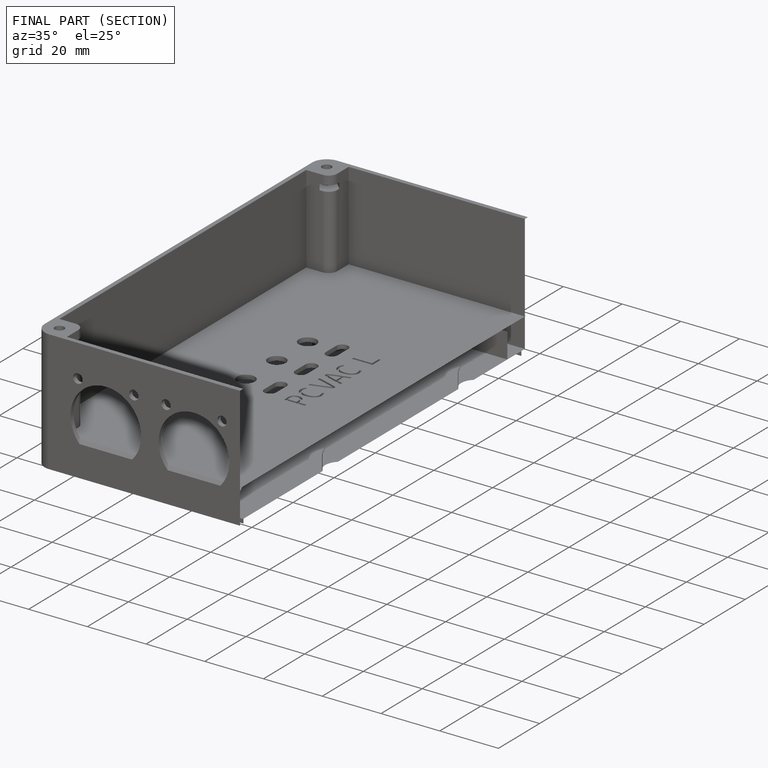
[diagram: finished part — half-section view (interior)]
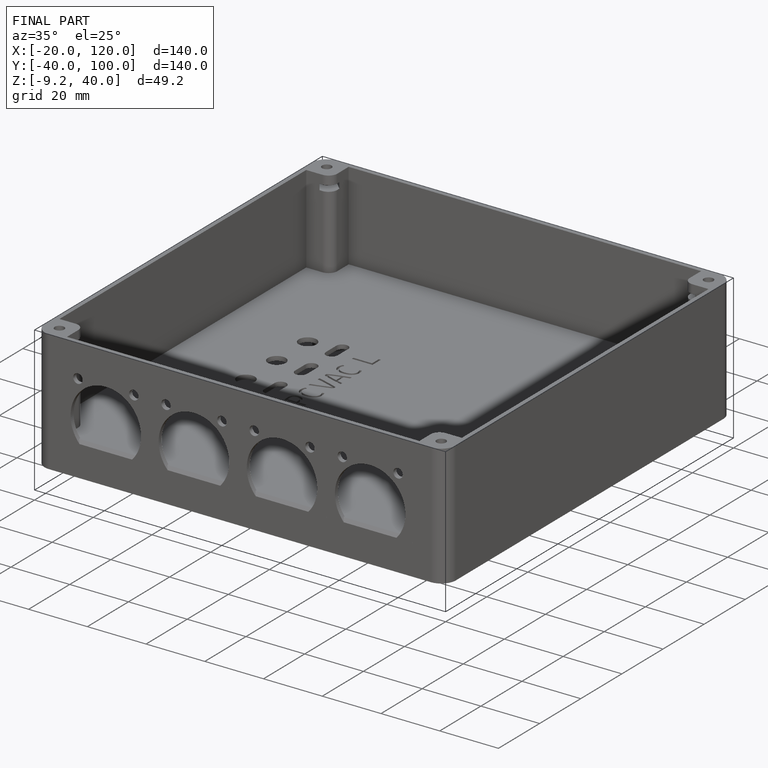
[diagram: finished part — iso view with bounding-box wireframe]
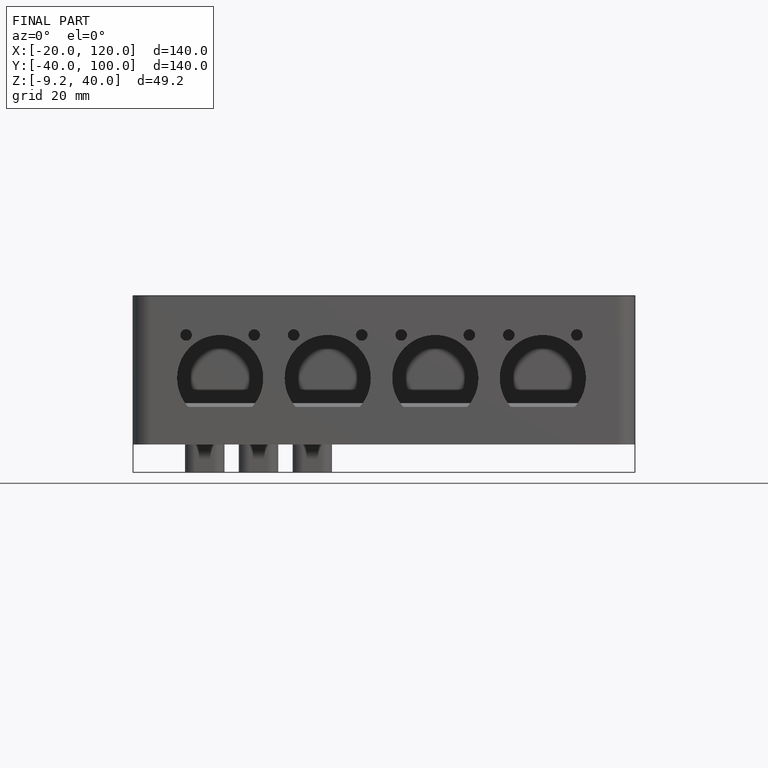
[diagram: finished part — front view with bounding-box wireframe]
